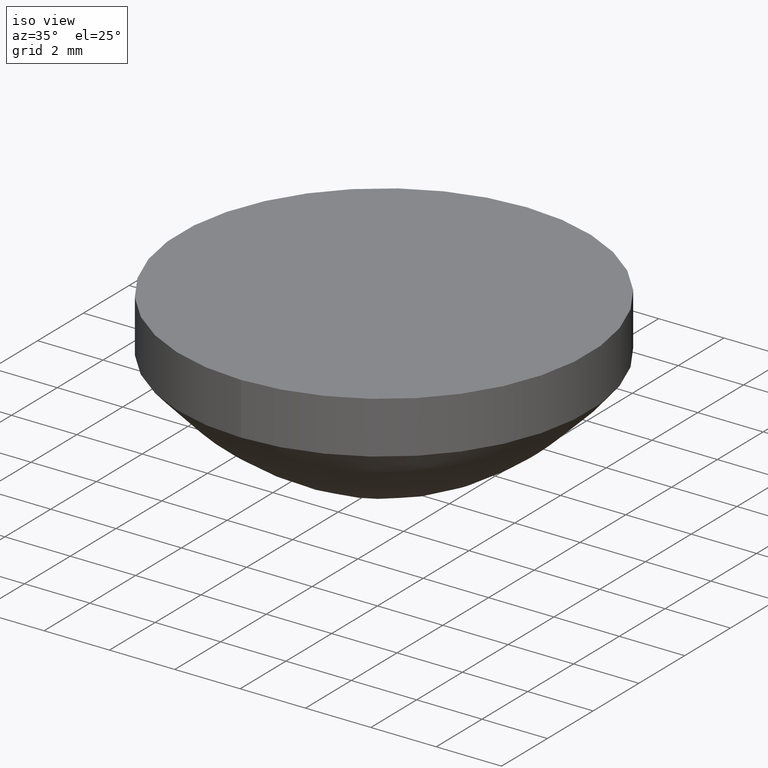
[diagram: clean part render]
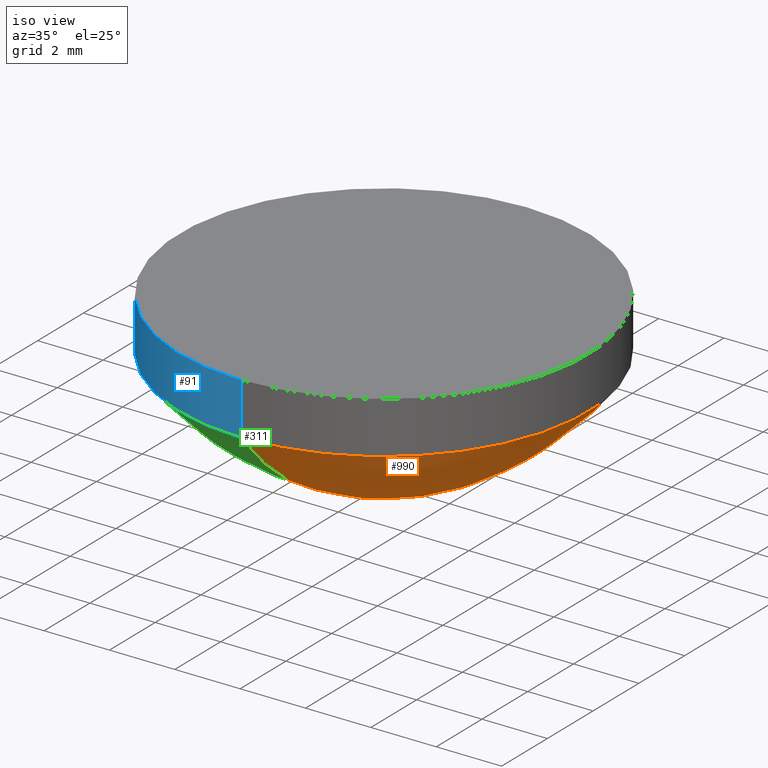
[diagram: same view with three faces highlighted in distinct colors, each labeled with its STEP entity id]
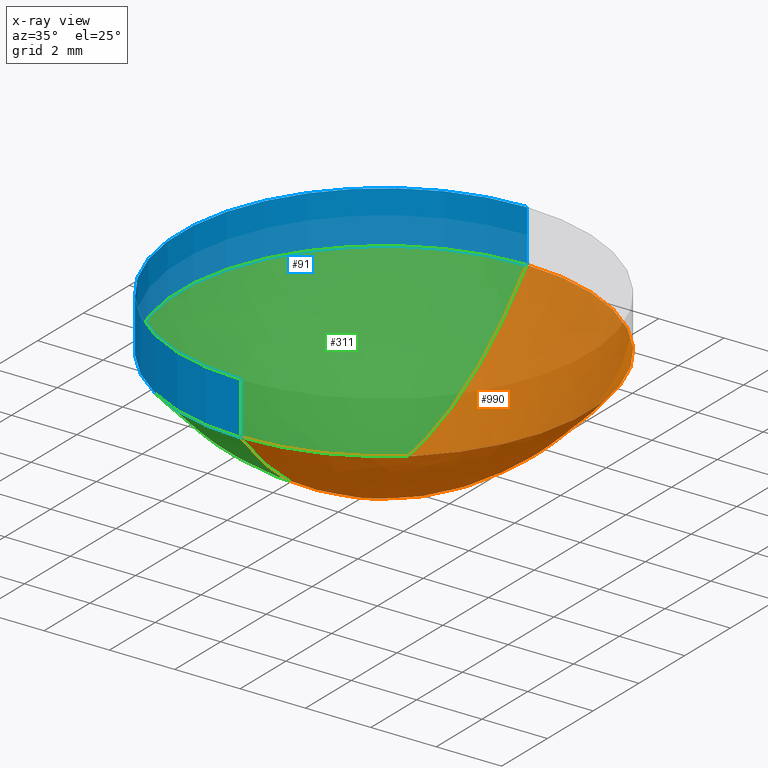
[diagram: x-ray of the same camera — body ghosted, the three highlighted faces saturated]
A machine part, iso view with three faces highlighted in distinct colors.
The next image is the same camera in x-ray (body ghosted, the three faces saturated) — at least one of them is partly hidden behind the body in this view.
Their STEP definitions:

[orange] entity #990 — the highlighted face is a freeform B-spline surface patch.
#8 = CARTESIAN_POINT ( 'NONE',  ( 4.036458333333339255, 2.018229166666669183, 0.3218751355130299863 ) ) ;
#13 = CARTESIAN_POINT ( 'NONE',  ( 5.208333333333340143, 2.604166666666668739, 0.5401275597489779701 ) ) ;
#18 = CARTESIAN_POINT ( 'NONE',  ( 1.530808498934191521E-15, 6.250000000000000000, 3.403336593621870243 ) ) ;
#20 = CARTESIAN_POINT ( 'NONE',  ( 4.427083333333339255, 2.213541666666668295, 0.3881345472726939749 ) ) ;
#23 = VERTEX_POINT ( 'NONE', #715 ) ;
#25 = CARTESIAN_POINT ( 'NONE',  ( -3.986480465974453286E-17, -0.3255208333333330373, 0.007960123591041510377 ) ) ;
#26 = CARTESIAN_POINT ( 'NONE',  ( 1.754051405028760358E-16, 0.7161458333333329263, 0.03984512652848549996 ) ) ;
#30 = CARTESIAN_POINT ( 'NONE',  ( -3.508102810057518251E-16, -2.864583333333329929, 0.6561958816574779974 ) ) ;
#31 = CARTESIAN_POINT ( 'NONE',  ( 2.551347498223661246E-16, 1.041666666666670071, 0.08480386022145479374 ) ) ;
#33 = CARTESIAN_POINT ( 'NONE',  ( -7.574312885351464633E-16, -6.184895833333330373, 3.325070444514509838 ) ) ;
#35 = CARTESIAN_POINT ( 'NONE',  ( -4.145939684613439356E-16, -3.385416666666669627, 0.9249476149875819342 ) ) ;
#36 = CARTESIAN_POINT ( 'NONE',  ( -1.833781014348245936E-16, -1.497395833333329929, 0.1761462725825910236 ) ) ;
#38 = CARTESIAN_POINT ( 'NONE',  ( 12.36979166666665897, 6.184895833333328596, 3.325070444514509393 ) ) ;
#39 = CARTESIAN_POINT ( 'NONE',  ( -4.704046949849854668E-16, -3.841145833333329929, 1.201789558080559761 ) ) ;
#40 = CARTESIAN_POINT ( 'NONE',  ( 1.594592186389783780E-16, 0.6510416666666670737, 0.03286486870605719729 ) ) ;
#42 = CARTESIAN_POINT ( 'NONE',  ( 0.000000000000000000, 6.250000000000000000, 3.403336593621870243 ) ) ;
#44 = CARTESIAN_POINT ( 'NONE',  ( 0.000000000000000000, 2.213541666666669627, 0.3881345472726939749 ) ) ;
#45 = CARTESIAN_POINT ( 'NONE',  ( 1.036484921153358163E-15, 4.231770833333330373, 1.471611584718580001 ) ) ;
#52 = CARTESIAN_POINT ( 'NONE',  ( -6.856746401476061403E-16, -5.598958333333329485, 2.674327517648130037 ) ) ;
#53 = CARTESIAN_POINT ( 'NONE',  ( 7.972960931948905833E-16, 3.255208333333329929, 0.8530870550945359732 ) ) ;
#58 = CARTESIAN_POINT ( 'NONE',  ( -7.095935229434529475E-16, -5.794270833333330373, 2.881664522960900143 ) ) ;
#59 = CARTESIAN_POINT ( 'NONE',  ( 6.380208333333338366, 3.190104166666667851, 0.8183418036056759881 ) ) ;
#63 = CARTESIAN_POINT ( 'NONE',  ( 0.000000000000000000, 2.864583333333329929, 0.6561958816574779974 ) ) ;
#66 = CARTESIAN_POINT ( 'NONE',  ( 0.000000000000000000, 6.250000000000000000, 3.403336593621870243 ) ) ;
#67 = CARTESIAN_POINT ( 'NONE',  ( 10.02604166666665897, -5.013020833333331261, 2.107278639910089790 ) ) ;
#70 = CARTESIAN_POINT ( 'NONE',  ( -2.232429060945700200E-16, -1.822916666666670071, 0.2619909968460720218 ) ) ;
#74 = CARTESIAN_POINT ( 'NONE',  ( -7.095935229434529475E-16, -5.794270833333330373, 2.881664522960900143 ) ) ;
#79 = CARTESIAN_POINT ( 'NONE',  ( 5.729166666666658969, -2.864583333333330817, 0.6561958816574779974 ) ) ;
#82 = CARTESIAN_POINT ( 'NONE',  ( -5.899991089642192072E-16, -4.817708333333330373, 1.935875560595740064 ) ) ;
#85 = CARTESIAN_POINT ( 'NONE',  ( 0.2604166666666659635, -0.1302083333333330373, 0.0009947067892723709167 ) ) ;
#90 = CARTESIAN_POINT ( 'NONE',  ( 0.5208333333333340365, 0.2604166666666669072, 0.004974768714207229887 ) ) ;
#98 = CARTESIAN_POINT ( 'NONE',  ( 5.598958333333339255, 2.799479166666668295, 0.6260573436883378751 ) ) ;
#101 = CARTESIAN_POINT ( 'NONE',  ( 4.557291666666658969, -2.278645833333330373, 0.4116498962344989909 ) ) ;
#103 = ORIENTED_EDGE ( 'NONE', *, *, #890, .T. ) ;
#105 = CARTESIAN_POINT ( 'NONE',  ( -4.943235777808322740E-16, -4.036458333333330373, 1.332854358668239980 ) ) ;
#106 = CARTESIAN_POINT ( 'NONE',  ( 5.581072652364232012E-16, 2.278645833333329929, 0.4116498962344989909 ) ) ;
#111 = CARTESIAN_POINT ( 'NONE',  ( -3.667562028696504690E-16, -2.994791666666670071, 0.7187551310801649773 ) ) ;
#112 = CARTESIAN_POINT ( 'NONE',  ( 3.189184372779557206E-16, 1.302083333333329929, 0.1329122646768700067 ) ) ;
#114 = CARTESIAN_POINT ( 'NONE',  ( 1.041666666666665853, -0.5208333333333330373, 0.02090489973812539870 ) ) ;
#116 = CARTESIAN_POINT ( 'NONE',  ( -2.471617888904167287E-16, -2.018229166666670071, 0.3218751355130299863 ) ) ;
#117 = CARTESIAN_POINT ( 'NONE',  ( -5.102694996447308687E-16, -4.166666666666670515, 1.424498019448530162 ) ) ;
#118 = CARTESIAN_POINT ( 'NONE',  ( 2.083333333333340143, 1.041666666666669627, 0.08480386022145479374 ) ) ;
#122 = CARTESIAN_POINT ( 'NONE',  ( -3.029725154140583585E-16, -2.473958333333330373, 0.4865430395386879936 ) ) ;
#123 = CARTESIAN_POINT ( 'NONE',  ( 9.886471555616645481E-16, 4.036458333333330373, 1.332854358668239980 ) ) ;
#124 = CARTESIAN_POINT ( 'NONE',  ( 2.083333333333339699, -1.041666666666670293, 0.08480386022145479374 ) ) ;
#125 = AXIS2_PLACEMENT_3D ( 'NONE', #794, #388, #722 ) ;
#129 = CARTESIAN_POINT ( 'NONE',  ( -5.581072652364243845E-16, -4.557291666666669627, 1.720464601404820160 ) ) ;
#130 = CARTESIAN_POINT ( 'NONE',  ( 9.114583333333339255, 4.557291666666666963, 1.720464601404820160 ) ) ;
#132 = CARTESIAN_POINT ( 'NONE',  ( 0.000000000000000000, 6.184895833333330373, 3.325070444514509838 ) ) ;
#135 = CARTESIAN_POINT ( 'NONE',  ( -5.341883824405776759E-16, -4.361979166666670515, 1.568483035519639968 ) ) ;
#136 = CARTESIAN_POINT ( 'NONE',  ( -4.863506168488841600E-16, -3.971354166666670071, 1.288324257827230035 ) ) ;
#142 = CARTESIAN_POINT ( 'NONE',  ( -6.537827964198114162E-16, -5.338541666666670515, 2.412316531365890082 ) ) ;
#143 = CARTESIAN_POINT ( 'NONE',  ( 7.682291666666658969, 3.841145833333328152, 1.201789558080559761 ) ) ;
#146 = CARTESIAN_POINT ( 'NONE',  ( 0.000000000000000000, 4.036458333333330373, 1.332854358668239980 ) ) ;
#149 = CARTESIAN_POINT ( 'NONE',  ( 0.000000000000000000, 1.822916666666670071, 0.2619909968460720218 ) ) ;
#150 = CARTESIAN_POINT ( 'NONE',  ( 10.41666666666666075, 5.208333333333327708, 2.287347182296629811 ) ) ;
#153 = CARTESIAN_POINT ( 'NONE',  ( -2.471617888904167287E-16, -2.018229166666670071, 0.3218751355130299863 ) ) ;
#155 = CARTESIAN_POINT ( 'NONE',  ( -6.139179917600660144E-16, -5.013020833333330373, 2.107278639910089790 ) ) ;
#157 = CARTESIAN_POINT ( 'NONE',  ( 3.255208333333338810, -1.627604166666670515, 0.2084057552931189716 ) ) ;
#160 = CARTESIAN_POINT ( 'NONE',  ( 9.895833333333339255, -4.947916666666670515, 2.049196939841769538 ) ) ;
#164 = CIRCLE ( 'NONE', #125, 6.250000000000000000 ) ;
#167 = CARTESIAN_POINT ( 'NONE',  ( 10.41666666666665897, -5.208333333333331261, 2.287347182296629811 ) ) ;
#178 = CARTESIAN_POINT ( 'NONE',  ( 6.059450308281167171E-16, 2.473958333333330373, 0.4865430395386879936 ) ) ;
#183 = CARTESIAN_POINT ( 'NONE',  ( 3.986480465974465242E-16, 1.627604166666670071, 0.2084057552931189994 ) ) ;
#188 = CARTESIAN_POINT ( 'NONE',  ( -2.949995544821101952E-16, -2.408854166666669627, 0.4608541434051309782 ) ) ;
#189 = CARTESIAN_POINT ( 'NONE',  ( 5.338541666666660745, 2.669270833333329040, 0.5680231818765699714 ) ) ;
#193 = CARTESIAN_POINT ( 'NONE',  ( -8.770257025143801790E-17, -0.7161458333333329263, 0.03984512652848549996 ) ) ;
#194 = CARTESIAN_POINT ( 'NONE',  ( 3.508102810057530577E-16, 1.432291666666670071, 0.1610513849395850128 ) ) ;
#197 = CARTESIAN_POINT ( 'NONE',  ( 11.84895833333333748, 5.924479166666667851, 3.025165044322720487 ) ) ;
#198 = CARTESIAN_POINT ( 'NONE',  ( -5.581072652364243106E-17, -0.4557291666666670182, 0.01592518936081670222 ) ) ;
#201 = CARTESIAN_POINT ( 'NONE',  ( -1.275673749111830623E-16, -1.041666666666670071, 0.08480386022145479374 ) ) ;
#202 = CARTESIAN_POINT ( 'NONE',  ( -4.225669293932920496E-16, -3.450520833333330373, 0.9620629232812268894 ) ) ;
#203 = CARTESIAN_POINT ( 'NONE',  ( 2.864583333333339699, -1.432291666666670515, 0.1610513849395850128 ) ) ;
#206 = CARTESIAN_POINT ( 'NONE',  ( -3.189184372779570394E-17, -0.2604166666666670182, 0.004974768714207229887 ) ) ;
#207 = CARTESIAN_POINT ( 'NONE',  ( 6.901041666666658081, -3.450520833333331261, 0.9620629232812268894 ) ) ;
#208 = CARTESIAN_POINT ( 'NONE',  ( 2.473958333333340143, 1.236979166666669405, 0.1198680337278859864 ) ) ;
#213 = CARTESIAN_POINT ( 'NONE',  ( -5.660802261683724985E-16, -4.622395833333329485, 1.772930391347679935 ) ) ;
#214 = CARTESIAN_POINT ( 'NONE',  ( 7.161458333333340143, 3.580729166666668739, 1.038712272262510172 ) ) ;
#217 = CARTESIAN_POINT ( 'NONE',  ( 0.000000000000000000, 4.427083333333329485, 1.618240928610130025 ) ) ;
#220 = CARTESIAN_POINT ( 'NONE',  ( 0.000000000000000000, 2.018229166666670071, 0.3218751355130299863 ) ) ;
#222 = CARTESIAN_POINT ( 'NONE',  ( -4.385128512571906935E-16, -3.580729166666670071, 1.038712272262510172 ) ) ;
#224 = CARTESIAN_POINT ( 'NONE',  ( 0.000000000000000000, 4.947916666666669627, 2.049196939841769538 ) ) ;
#227 = CARTESIAN_POINT ( 'NONE',  ( -6.139179917600660144E-16, -5.013020833333330373, 2.107278639910089790 ) ) ;
#228 = CARTESIAN_POINT ( 'NONE',  ( -5.421613433725257899E-16, -4.427083333333329485, 1.618240928610130025 ) ) ;
#231 = CARTESIAN_POINT ( 'NONE',  ( 0.000000000000000000, 5.533854166666669627, 2.607297952016180087 ) ) ;
#233 = CARTESIAN_POINT ( 'NONE',  ( 0.000000000000000000, 0.8463541666666670737, 0.05581488638602400548 ) ) ;
#234 = CARTESIAN_POINT ( 'NONE',  ( 10.80729166666665897, 5.403645833333326820, 2.476292475211630428 ) ) ;
#237 = EDGE_CURVE ( 'NONE', #269, #765, #164, .T. ) ;
#238 = CARTESIAN_POINT ( 'NONE',  ( 0.000000000000000000, 2.408854166666669627, 0.4608541434051309782 ) ) ;
#240 = CARTESIAN_POINT ( 'NONE',  ( 1.403241124023009470E-15, 5.729166666666669627, 2.811510783374440159 ) ) ;
#243 = CARTESIAN_POINT ( 'NONE',  ( -1.993240232987232621E-16, -1.627604166666670071, 0.2084057552931189994 ) ) ;
#244 = CARTESIAN_POINT ( 'NONE',  ( 1.259727827247929218E-15, 5.143229166666670515, 2.226353750338610382 ) ) ;
#248 = CARTESIAN_POINT ( 'NONE',  ( 1.307565592839622832E-15, 5.338541666666670515, 2.412316531365890082 ) ) ;
#261 = CARTESIAN_POINT ( 'NONE',  ( 3.385416666666658525, -1.692708333333330373, 0.2255703485160569788 ) ) ;
#266 = CARTESIAN_POINT ( 'NONE',  ( 3.255208333333339699, 1.627604166666669183, 0.2084057552931189716 ) ) ;
#269 = VERTEX_POINT ( 'NONE', #644 ) ;
#271 = CARTESIAN_POINT ( 'NONE',  ( 4.817708333333339255, -2.408854166666670071, 0.4608541434051309782 ) ) ;
#274 = CARTESIAN_POINT ( 'NONE',  ( 11.97916666666666075, 5.989583333333327708, 3.098511873417590046 ) ) ;
#275 = CARTESIAN_POINT ( 'NONE',  ( 5.102694996447296854E-16, 2.083333333333330373, 0.3432471658558169936 ) ) ;
#278 = CARTESIAN_POINT ( 'NONE',  ( -7.494583276031983493E-16, -6.119791666666670515, 3.248464545390089775 ) ) ;
#280 = CARTESIAN_POINT ( 'NONE',  ( 1.302083333333334147, 0.6510416666666667407, 0.03286486870605719729 ) ) ;
#282 = CARTESIAN_POINT ( 'NONE',  ( -7.972960931948918898E-17, -0.6510416666666670737, 0.03286486870605719729 ) ) ;
#283 = CARTESIAN_POINT ( 'NONE',  ( 8.463541666666658969, -4.231770833333331261, 1.471611584718580001 ) ) ;
#284 = CARTESIAN_POINT ( 'NONE',  ( 1.275673749111825446E-16, 0.5208333333333330373, 0.02090489973812539870 ) ) ;
#286 = CARTESIAN_POINT ( 'NONE',  ( -1.993240232987232621E-16, -1.627604166666670071, 0.2084057552931189994 ) ) ;
#287 = CARTESIAN_POINT ( 'NONE',  ( 1.084322686745051580E-15, 4.427083333333329485, 1.618240928610130025 ) ) ;
#288 = CARTESIAN_POINT ( 'NONE',  ( 1.432291666666665853, 0.7161458333333325932, 0.03984512652848549996 ) ) ;
#290 = CARTESIAN_POINT ( 'NONE',  ( -6.378368745559128216E-16, -5.208333333333330373, 2.287347182296629811 ) ) ;
#291 = CARTESIAN_POINT ( 'NONE',  ( 6.770833333333338366, 3.385416666666667851, 0.9249476149875819342 ) ) ;
#293 = CARTESIAN_POINT ( 'NONE',  ( 0.000000000000000000, 4.166666666666670515, 1.424498019448530162 ) ) ;
#296 = CARTESIAN_POINT ( 'NONE',  ( 0.000000000000000000, 1.692708333333329929, 0.2255703485160570065 ) ) ;
#297 = CARTESIAN_POINT ( 'NONE',  ( 9.244791666666658969, -4.622395833333331261, 1.772930391347679935 ) ) ;
#299 = CARTESIAN_POINT ( 'NONE',  ( 0.000000000000000000, 4.817708333333330373, 1.935875560595740064 ) ) ;
#303 = CARTESIAN_POINT ( 'NONE',  ( -6.777016792156581248E-16, -5.533854166666669627, 2.607297952016180087 ) ) ;
#304 = CARTESIAN_POINT ( 'NONE',  ( 1.020538999289461737E-15, 4.166666666666670515, 1.424498019448530162 ) ) ;
#306 = CARTESIAN_POINT ( 'NONE',  ( 0.000000000000000000, 5.338541666666670515, 2.412316531365890082 ) ) ;
#308 = CARTESIAN_POINT ( 'NONE',  ( 0.000000000000000000, 2.278645833333329929, 0.4116498962344989909 ) ) ;
#309 = CARTESIAN_POINT ( 'NONE',  ( 11.19791666666666075, 5.598958333333327708, 2.674327517648129593 ) ) ;
#314 = CARTESIAN_POINT ( 'NONE',  ( 0.000000000000000000, 5.403645833333329485, 2.476292475211629984 ) ) ;
#316 = CARTESIAN_POINT ( 'NONE',  ( -6.856746401476061403E-16, -5.598958333333329485, 2.674327517648130037 ) ) ;
#320 = CARTESIAN_POINT ( 'NONE',  ( -2.312158670265180848E-16, -1.888020833333329929, 0.2812470499699329940 ) ) ;
#321 = CARTESIAN_POINT ( 'NONE',  ( 1.275673749111825643E-15, 5.208333333333330373, 2.287347182296629811 ) ) ;
#323 = CARTESIAN_POINT ( 'NONE',  ( 7.335124057393009380E-16, 2.994791666666670071, 0.7187551310801649773 ) ) ;
#324 = CARTESIAN_POINT ( 'NONE',  ( 0.5208333333333339255, -0.2604166666666670737, 0.004974768714207229887 ) ) ;
#326 = CARTESIAN_POINT ( 'NONE',  ( 1.211890061656235604E-15, 4.947916666666669627, 2.049196939841769538 ) ) ;
#333 = CARTESIAN_POINT ( 'NONE',  ( 0.1302083333333333426, -0.06510416666666669905, 0.000000000000000000 ) ) ;
#340 = CARTESIAN_POINT ( 'NONE',  ( -2.949995544821101952E-16, -2.408854166666669627, 0.4608541434051309782 ) ) ;
#347 = CARTESIAN_POINT ( 'NONE',  ( 6.856746401476073235E-16, 2.799479166666669627, 0.6260573436883379861 ) ) ;
#353 = CARTESIAN_POINT ( 'NONE',  ( -5.581072652364243106E-17, -0.4557291666666670182, 0.01592518936081670222 ) ) ;
#354 = CARTESIAN_POINT ( 'NONE',  ( -3.508102810057518251E-16, -2.864583333333329929, 0.6561958816574779974 ) ) ;
#359 = CARTESIAN_POINT ( 'NONE',  ( 12.23958333333333925, 6.119791666666668739, 3.248464545390089775 ) ) ;
#360 = CARTESIAN_POINT ( 'NONE',  ( -1.514862577070297956E-16, -1.236979166666670071, 0.1198680337278860003 ) ) ;
#362 = CARTESIAN_POINT ( 'NONE',  ( -2.072969842306713515E-16, -1.692708333333329929, 0.2255703485160570065 ) ) ;
#363 = CARTESIAN_POINT ( 'NONE',  ( -1.036484921153359223E-16, -0.8463541666666670737, 0.05581488638602400548 ) ) ;
#364 = CARTESIAN_POINT ( 'NONE',  ( 1.498916655206396699E-15, 6.119791666666670515, 3.248464545390089775 ) ) ;
#365 = CARTESIAN_POINT ( 'NONE',  ( 7.682291666666658081, -3.841145833333330817, 1.201789558080559761 ) ) ;
#366 = CARTESIAN_POINT ( 'NONE',  ( 2.604166666666659857, 1.302083333333329263, 0.1329122646768700067 ) ) ;
#368 = CARTESIAN_POINT ( 'NONE',  ( 12.49999999999999822, -6.250000000000002665, 3.403336593621869799 ) ) ;
#369 = CARTESIAN_POINT ( 'NONE',  ( 7.291666666666658969, -3.645833333333331261, 1.078246313772860177 ) ) ;
#370 = CARTESIAN_POINT ( 'NONE',  ( 3.667562028696491871E-16, 1.497395833333329929, 0.1761462725825910236 ) ) ;
#373 = CARTESIAN_POINT ( 'NONE',  ( 0.000000000000000000, 5.598958333333329485, 2.674327517648130037 ) ) ;
#375 = CARTESIAN_POINT ( 'NONE',  ( 0.000000000000000000, 0.6510416666666670737, 0.03286486870605719729 ) ) ;
#376 = CARTESIAN_POINT ( 'NONE',  ( -4.943235777808322740E-16, -4.036458333333330373, 1.332854358668239980 ) ) ;
#382 = CARTESIAN_POINT ( 'NONE',  ( 0.000000000000000000, 1.106770833333329929, 0.09581383076524060960 ) ) ;
#383 = CARTESIAN_POINT ( 'NONE',  ( 1.116214530472848769E-15, 4.557291666666669627, 1.720464601404820160 ) ) ;
#386 = CARTESIAN_POINT ( 'NONE',  ( 0.000000000000000000, 3.450520833333330373, 0.9620629232812268894 ) ) ;
#388 = DIRECTION ( 'NONE',  ( 0.000000000000000000, 0.000000000000000000, 1.000000000000000000 ) ) ;
#390 = CARTESIAN_POINT ( 'NONE',  ( 0.000000000000000000, 1.497395833333329929, 0.1761462725825910236 ) ) ;
#391 = CARTESIAN_POINT ( 'NONE',  ( 7.291666666666659857, 3.645833333333328596, 1.078246313772860177 ) ) ;
#395 = CARTESIAN_POINT ( 'NONE',  ( 0.000000000000000000, 2.799479166666669627, 0.6260573436883379861 ) ) ;
#396 = CARTESIAN_POINT ( 'NONE',  ( 10.02604166666666075, 5.013020833333327708, 2.107278639910089790 ) ) ;
#398 = CARTESIAN_POINT ( 'NONE',  ( -1.594592186389779034E-17, -0.1302083333333330095, 0.0009947067892723709167 ) ) ;
#400 = CARTESIAN_POINT ( 'NONE',  ( 4.947916666666658969, -2.473958333333330817, 0.4865430395386879936 ) ) ;
#403 = CARTESIAN_POINT ( 'NONE',  ( 9.635416666666657193, -4.817708333333331261, 1.935875560595740064 ) ) ;
#405 = CARTESIAN_POINT ( 'NONE',  ( 5.729166666666659857, 2.864583333333329040, 0.6561958816574779974 ) ) ;
#407 = CARTESIAN_POINT ( 'NONE',  ( 9.505208333333339255, 4.752604166666666963, 1.880635864230930210 ) ) ;
#411 = CARTESIAN_POINT ( 'NONE',  ( 0.1302083333333333703, 0.06510416666666665741, 0.000000000000000000 ) ) ;
#416 = CARTESIAN_POINT ( 'NONE',  ( 0.2604166666666660190, 0.1302083333333329540, 0.0009947067892723709167 ) ) ;
#424 = B_SPLINE_CURVE_WITH_KNOTS ( 'NONE', 3,
 ( #42, #132, #467, #713, #806, #708, #546, #373, #231, #314, #306, #557, #1047, #891, #224, #299, #627, #1042, #964, #217, #455, #898, #293, #146, #552, #642, #884, #650, #565, #386, #787, #720, #958, #1054, #474, #63, #395, #728, #1062, #980, #238, #308, #44, #789, #220, #808, #149, #296, #630, #390, #874, #1044, #645, #382, #723, #976, #233, #803, #375, #717, #549, #796, #554, #1058, #893, #887 ),
 .UNSPECIFIED., .F., .F.,
 ( 4, 2, 2, 2, 2, 2, 2, 2, 2, 2, 2, 2, 2, 2, 2, 2, 2, 2, 2, 2, 2, 2, 2, 2, 2, 2, 2, 2, 2, 2, 2, 2, 4 ),
 ( -1.000000000000000000, -0.9687500000000000000, -0.9375000000000000000, -0.9062500000000000000, -0.8750000000000000000, -0.8437500000000000000, -0.8125000000000000000, -0.7812500000000000000, -0.7500000000000000000, -0.7187500000000000000, -0.6875000000000000000, -0.6562500000000000000, -0.6250000000000000000, -0.5937500000000000000, -0.5625000000000000000, -0.5312500000000000000, -0.5000000000000000000, -0.4687500000000000000, -0.4375000000000000000, -0.4062500000000000000, -0.3750000000000000000, -0.3437500000000000000, -0.3125000000000000000, -0.2812500000000000000, -0.2500000000000000000, -0.2187500000000000000, -0.1875000000000000000, -0.1562500000000000000, -0.1250000000000000000, -0.09375000000000000000, -0.06250000000000000000, -0.03125000000000000000, 0.000000000000000000 ),
 .UNSPECIFIED. ) ;
#426 = CARTESIAN_POINT ( 'NONE',  ( 6.537827964198102329E-16, 2.669270833333330373, 0.5680231818765699714 ) ) ;
#430 = CARTESIAN_POINT ( 'NONE',  ( 7.494583276031971660E-16, 3.059895833333330373, 0.7511758411882110131 ) ) ;
#434 = CARTESIAN_POINT ( 'NONE',  ( -2.710806716862634373E-16, -2.213541666666669627, 0.3881345472726939749 ) ) ;
#435 = CARTESIAN_POINT ( 'NONE',  ( -2.551347498223648427E-16, -2.083333333333330373, 0.3432471658558169936 ) ) ;
#438 = CARTESIAN_POINT ( 'NONE',  ( -1.754051405028765288E-16, -1.432291666666670071, 0.1610513849395850128 ) ) ;
#439 = CARTESIAN_POINT ( 'NONE',  ( 2.232429060945694777E-16, 0.9114583333333330373, 0.06480438740725780189 ) ) ;
#442 = CARTESIAN_POINT ( 'NONE',  ( -4.863506168488841600E-16, -3.971354166666670071, 1.288324257827230035 ) ) ;
#443 = CARTESIAN_POINT ( 'NONE',  ( -1.754051405028765288E-16, -1.432291666666670071, 0.1610513849395850128 ) ) ;
#445 = CARTESIAN_POINT ( 'NONE',  ( -1.594592186389779034E-17, -0.1302083333333330095, 0.0009947067892723709167 ) ) ;
#446 = CARTESIAN_POINT ( 'NONE',  ( 7.942708333333338366, -3.971354166666671404, 1.288324257827230035 ) ) ;
#447 = CARTESIAN_POINT ( 'NONE',  ( -1.355403358431311023E-16, -1.106770833333329929, 0.09581383076524060960 ) ) ;
#451 = CARTESIAN_POINT ( 'NONE',  ( -2.790536326182116006E-16, -2.278645833333329929, 0.4116498962344989909 ) ) ;
#452 = CARTESIAN_POINT ( 'NONE',  ( 8.854166666666660745, 4.427083333333327708, 1.618240928610129803 ) ) ;
#453 = CARTESIAN_POINT ( 'NONE',  ( 2.072969842306718445E-16, 0.8463541666666670737, 0.05581488638602400548 ) ) ;
#455 = CARTESIAN_POINT ( 'NONE',  ( 0.000000000000000000, 4.361979166666670515, 1.568483035519639968 ) ) ;
#456 = CARTESIAN_POINT ( 'NONE',  ( -5.421613433725257899E-16, -4.427083333333329485, 1.618240928610130025 ) ) ;
#457 = CARTESIAN_POINT ( 'NONE',  ( 8.723958333333339255, -4.361979166666671404, 1.568483035519640190 ) ) ;
#463 = CARTESIAN_POINT ( 'NONE',  ( -5.102694996447308687E-16, -4.166666666666670515, 1.424498019448530162 ) ) ;
#464 = CARTESIAN_POINT ( 'NONE',  ( 7.552083333333336590, -3.776041666666670515, 1.159784955675789764 ) ) ;
#467 = CARTESIAN_POINT ( 'NONE',  ( 0.000000000000000000, 6.119791666666670515, 3.248464545390089775 ) ) ;
#471 = CARTESIAN_POINT ( 'NONE',  ( 7.654042494670957606E-16, -6.250000000000000000, 3.403336593621870243 ) ) ;
#472 = CARTESIAN_POINT ( 'NONE',  ( 6.380208333333337478, -3.190104166666670515, 0.8183418036056759881 ) ) ;
#474 = CARTESIAN_POINT ( 'NONE',  ( 0.000000000000000000, 2.994791666666670071, 0.7187551310801649773 ) ) ;
#477 = CARTESIAN_POINT ( 'NONE',  ( -7.335124057392997547E-16, -5.989583333333330373, 3.098511873417590046 ) ) ;
#478 = CARTESIAN_POINT ( 'NONE',  ( -6.298639136239646090E-16, -5.143229166666670515, 2.226353750338610382 ) ) ;
#482 = CARTESIAN_POINT ( 'NONE',  ( 4.817708333333339255, 2.408854166666668295, 0.4608541434051309782 ) ) ;
#484 = CARTESIAN_POINT ( 'NONE',  ( 1.419187045886905895E-15, 5.794270833333330373, 2.881664522960900143 ) ) ;
#487 = CARTESIAN_POINT ( 'NONE',  ( 6.119791666666658969, -3.059895833333331705, 0.7511758411882111242 ) ) ;
#490 = CARTESIAN_POINT ( 'NONE',  ( 1.179998217928438414E-15, 4.817708333333330373, 1.935875560595740064 ) ) ;
#494 = CARTESIAN_POINT ( 'NONE',  ( 0.000000000000000000, 0.000000000000000000, 0.000000000000000000 ) ) ;
#496 = CARTESIAN_POINT ( 'NONE',  ( -6.617557573517594316E-16, -5.403645833333329485, 2.476292475211629984 ) ) ;
#507 = CARTESIAN_POINT ( 'NONE',  ( 5.208333333333339255, -2.604166666666670515, 0.5401275597489779701 ) ) ;
#511 = CARTESIAN_POINT ( 'NONE',  ( 4.947916666666659857, 2.473958333333328596, 0.4865430395386879936 ) ) ;
#515 = CARTESIAN_POINT ( 'NONE',  ( 11.97916666666665719, -5.989583333333333037, 3.098511873417590046 ) ) ;
#516 = CARTESIAN_POINT ( 'NONE',  ( -3.747291638015985830E-16, -3.059895833333330373, 0.7511758411882110131 ) ) ;
#521 = CARTESIAN_POINT ( 'NONE',  ( 1.467024811478599509E-15, 5.989583333333330373, 3.098511873417590046 ) ) ;
#522 = CARTESIAN_POINT ( 'NONE',  ( 2.604166666666659857, -1.302083333333330373, 0.1329122646768700067 ) ) ;
#526 = CARTESIAN_POINT ( 'NONE',  ( -3.268913982099051165E-16, -2.669270833333330373, 0.5680231818765699714 ) ) ;
#527 = CARTESIAN_POINT ( 'NONE',  ( -8.770257025143801790E-17, -0.7161458333333329263, 0.03984512652848549996 ) ) ;
#529 = CARTESIAN_POINT ( 'NONE',  ( -1.116214530472847389E-16, -0.9114583333333330373, 0.06480438740725780189 ) ) ;
#531 = CARTESIAN_POINT ( 'NONE',  ( 8.854166666666657193, -4.427083333333330373, 1.618240928610129803 ) ) ;
#532 = CARTESIAN_POINT ( 'NONE',  ( 3.029725154140595911E-16, 1.236979166666670071, 0.1198680337278860003 ) ) ;
#536 = CARTESIAN_POINT ( 'NONE',  ( -4.464858121891388568E-16, -3.645833333333330373, 1.078246313772859954 ) ) ;
#537 = CARTESIAN_POINT ( 'NONE',  ( 6.770833333333337478, -3.385416666666670515, 0.9249476149875819342 ) ) ;
#538 = CARTESIAN_POINT ( 'NONE',  ( -7.972960931948918898E-17, -0.6510416666666670737, 0.03286486870605719729 ) ) ;
#543 = CARTESIAN_POINT ( 'NONE',  ( -7.016205620115047349E-16, -5.729166666666669627, 2.811510783374440159 ) ) ;
#544 = CARTESIAN_POINT ( 'NONE',  ( 6.901041666666659857, 3.450520833333328596, 0.9620629232812268894 ) ) ;
#546 = CARTESIAN_POINT ( 'NONE',  ( 0.000000000000000000, 5.729166666666669627, 2.811510783374440159 ) ) ;
#549 = CARTESIAN_POINT ( 'NONE',  ( 0.000000000000000000, 0.4557291666666670182, 0.01592518936081670222 ) ) ;
#550 = CARTESIAN_POINT ( 'NONE',  ( 8.291879369226878711E-16, 3.385416666666669627, 0.9249476149875819342 ) ) ;
#552 = CARTESIAN_POINT ( 'NONE',  ( 0.000000000000000000, 3.971354166666670071, 1.288324257827230035 ) ) ;
#554 = CARTESIAN_POINT ( 'NONE',  ( 0.000000000000000000, 0.2604166666666670182, 0.004974768714207229887 ) ) ;
#555 = CARTESIAN_POINT ( 'NONE',  ( 9.248634681060749028E-16, 3.776041666666669627, 1.159784955675789986 ) ) ;
#557 = CARTESIAN_POINT ( 'NONE',  ( 0.000000000000000000, 5.208333333333330373, 2.287347182296629811 ) ) ;
#561 = CARTESIAN_POINT ( 'NONE',  ( -7.494583276031983493E-16, -6.119791666666670515, 3.248464545390089775 ) ) ;
#562 = CARTESIAN_POINT ( 'NONE',  ( -6.537827964198114162E-16, -5.338541666666670515, 2.412316531365890082 ) ) ;
#565 = CARTESIAN_POINT ( 'NONE',  ( 0.000000000000000000, 3.580729166666670071, 1.038712272262510172 ) ) ;
#566 = CARTESIAN_POINT ( 'NONE',  ( 10.67708333333333925, -5.338541666666672292, 2.412316531365890082 ) ) ;
#569 = CARTESIAN_POINT ( 'NONE',  ( 5.989583333333338366, -2.994791666666670515, 0.7187551310801649773 ) ) ;
#570 = CARTESIAN_POINT ( 'NONE',  ( 6.378368745559140789E-17, 0.2604166666666670182, 0.004974768714207229887 ) ) ;
#572 = CARTESIAN_POINT ( 'NONE',  ( 11.19791666666665897, -5.598958333333332149, 2.674327517648129593 ) ) ;
#577 = CARTESIAN_POINT ( 'NONE',  ( 1.371349280295212281E-15, 5.598958333333329485, 2.674327517648130037 ) ) ;
#585 = CARTESIAN_POINT ( 'NONE',  ( 7.972960931948906572E-17, 0.3255208333333330373, 0.007960123591041510377 ) ) ;
#588 = CARTESIAN_POINT ( 'NONE',  ( 4.036458333333339255, -2.018229166666670071, 0.3218751355130299863 ) ) ;
#595 = CARTESIAN_POINT ( 'NONE',  ( 3.776041666666658969, 1.888020833333329263, 0.2812470499699330495 ) ) ;
#600 = CARTESIAN_POINT ( 'NONE',  ( -3.986480465974452916E-16, -3.255208333333329929, 0.8530870550945359732 ) ) ;
#601 = CARTESIAN_POINT ( 'NONE',  ( 5.598958333333338366, -2.799479166666670515, 0.6260573436883378751 ) ) ;
#605 = CARTESIAN_POINT ( 'NONE',  ( -4.145939684613439356E-16, -3.385416666666669627, 0.9249476149875819342 ) ) ;
#606 = CARTESIAN_POINT ( 'NONE',  ( 2.473958333333339699, -1.236979166666670071, 0.1198680337278859864 ) ) ;
#609 = CARTESIAN_POINT ( 'NONE',  ( -7.255394448073515421E-16, -5.924479166666669627, 3.025165044322720043 ) ) ;
#610 = CARTESIAN_POINT ( 'NONE',  ( 1.302083333333333925, -0.6510416666666671848, 0.03286486870605719729 ) ) ;
#613 = CARTESIAN_POINT ( 'NONE',  ( -2.551347498223648427E-16, -2.083333333333330373, 0.3432471658558169936 ) ) ;
#614 = CARTESIAN_POINT ( 'NONE',  ( 7.813501713309942566E-16, 3.190104166666669627, 0.8183418036056759881 ) ) ;
#615 = CARTESIAN_POINT ( 'NONE',  ( -1.594592186389778603E-16, -1.302083333333329929, 0.1329122646768700067 ) ) ;
#618 = CARTESIAN_POINT ( 'NONE',  ( -2.312158670265180848E-16, -1.888020833333329929, 0.2812470499699329940 ) ) ;
#619 = CARTESIAN_POINT ( 'NONE',  ( 8.072916666666660745, 4.036458333333328596, 1.332854358668239980 ) ) ;
#620 = CARTESIAN_POINT ( 'NONE',  ( 1.116214530472848621E-16, 0.4557291666666670182, 0.01592518936081670222 ) ) ;
#624 = CARTESIAN_POINT ( 'NONE',  ( -6.059450308281178018E-16, -4.947916666666669627, 2.049196939841769538 ) ) ;
#625 = CARTESIAN_POINT ( 'NONE',  ( 8.770257025143813870E-16, 3.580729166666670071, 1.038712272262510172 ) ) ;
#627 = CARTESIAN_POINT ( 'NONE',  ( 0.000000000000000000, 4.752604166666669627, 1.880635864230930210 ) ) ;
#630 = CARTESIAN_POINT ( 'NONE',  ( 0.000000000000000000, 1.627604166666670071, 0.2084057552931189994 ) ) ;
#631 = CARTESIAN_POINT ( 'NONE',  ( 8.333333333333337478, -4.166666666666670515, 1.424498019448530162 ) ) ;
#637 = CARTESIAN_POINT ( 'NONE',  ( -6.617557573517594316E-16, -5.403645833333329485, 2.476292475211629984 ) ) ;
#639 = CARTESIAN_POINT ( 'NONE',  ( -4.624317340530374514E-16, -3.776041666666669627, 1.159784955675789986 ) ) ;
#642 = CARTESIAN_POINT ( 'NONE',  ( 0.000000000000000000, 3.841145833333329929, 1.201789558080559761 ) ) ;
#644 = CARTESIAN_POINT ( 'NONE',  ( 7.654042494670957606E-16, -6.250000000000000000, 3.403336593621870243 ) ) ;
#645 = CARTESIAN_POINT ( 'NONE',  ( 0.000000000000000000, 1.236979166666670071, 0.1198680337278860003 ) ) ;
#646 = CARTESIAN_POINT ( 'NONE',  ( 11.06770833333333925, -5.533854166666671404, 2.607297952016180087 ) ) ;
#650 = CARTESIAN_POINT ( 'NONE',  ( 0.000000000000000000, 3.645833333333330373, 1.078246313772859954 ) ) ;
#651 = CARTESIAN_POINT ( 'NONE',  ( 11.58854166666665897, 5.794270833333326820, 2.881664522960900143 ) ) ;
#655 = CARTESIAN_POINT ( 'NONE',  ( 3.385416666666659413, 1.692708333333329040, 0.2255703485160569788 ) ) ;
#656 = CARTESIAN_POINT ( 'NONE',  ( 10.28645833333333748, -5.143229166666670515, 2.226353750338610382 ) ) ;
#658 = CARTESIAN_POINT ( 'NONE',  ( 0.000000000000000000, 0.000000000000000000, 0.000000000000000000 ) ) ;
#660 = CARTESIAN_POINT ( 'NONE',  ( -6.378368745559128216E-16, -5.208333333333330373, 2.287347182296629811 ) ) ;
#668 = CARTESIAN_POINT ( 'NONE',  ( 0.000000000000000000, 0.000000000000000000, 0.000000000000000000 ) ) ;
#671 = CARTESIAN_POINT ( 'NONE',  ( 3.645833333333338810, -1.822916666666670737, 0.2619909968460720218 ) ) ;
#678 = CARTESIAN_POINT ( 'NONE',  ( 3.645833333333340143, 1.822916666666669405, 0.2619909968460720218 ) ) ;
#684 = CARTESIAN_POINT ( 'NONE',  ( 7.016205620115036502E-16, 2.864583333333329929, 0.6561958816574779974 ) ) ;
#688 = ORIENTED_EDGE ( 'NONE', *, *, #714, .F. ) ;
#690 = CARTESIAN_POINT ( 'NONE',  ( -1.594592186389778603E-16, -1.302083333333329929, 0.1329122646768700067 ) ) ;
#691 = CARTESIAN_POINT ( 'NONE',  ( 4.166666666666660745, 2.083333333333329485, 0.3432471658558170491 ) ) ;
#695 = CARTESIAN_POINT ( 'NONE',  ( 12.50000000000000000, 6.249999999999997335, 3.403336593621869799 ) ) ;
#696 = CARTESIAN_POINT ( 'NONE',  ( 2.994791666666658969, -1.497395833333330595, 0.1761462725825909958 ) ) ;
#698 = CARTESIAN_POINT ( 'NONE',  ( -1.036484921153359223E-16, -0.8463541666666670737, 0.05581488638602400548 ) ) ;
#700 = CARTESIAN_POINT ( 'NONE',  ( 1.692708333333333703, 0.8463541666666665186, 0.05581488638602400548 ) ) ;
#701 = CARTESIAN_POINT ( 'NONE',  ( -4.704046949849854668E-16, -3.841145833333329929, 1.201789558080559761 ) ) ;
#702 = CARTESIAN_POINT ( 'NONE',  ( -4.464858121891388568E-16, -3.645833333333330373, 1.078246313772859954 ) ) ;
#703 = CARTESIAN_POINT ( 'NONE',  ( 1.041666666666666075, 0.5208333333333328152, 0.02090489973812539870 ) ) ;
#705 = CARTESIAN_POINT ( 'NONE',  ( -2.232429060945700200E-16, -1.822916666666670071, 0.2619909968460720218 ) ) ;
#706 = CARTESIAN_POINT ( 'NONE',  ( 8.451338587865840991E-16, 3.450520833333330373, 0.9620629232812268894 ) ) ;
#708 = CARTESIAN_POINT ( 'NONE',  ( 0.000000000000000000, 5.794270833333330373, 2.881664522960900143 ) ) ;
#710 = CARTESIAN_POINT ( 'NONE',  ( -7.574312885351464633E-16, -6.184895833333330373, 3.325070444514509838 ) ) ;
#711 = CARTESIAN_POINT ( 'NONE',  ( 1.132160452336744997E-15, 4.622395833333329485, 1.772930391347679935 ) ) ;
#713 = CARTESIAN_POINT ( 'NONE',  ( 0.000000000000000000, 5.989583333333330373, 3.098511873417590046 ) ) ;
#714 = EDGE_CURVE ( 'NONE', #765, #23, #424, .T. ) ;
#715 = CARTESIAN_POINT ( 'NONE',  ( 0.000000000000000000, 0.000000000000000000, 0.000000000000000000 ) ) ;
#717 = CARTESIAN_POINT ( 'NONE',  ( 0.000000000000000000, 0.5208333333333330373, 0.02090489973812539870 ) ) ;
#718 = CARTESIAN_POINT ( 'NONE',  ( -5.341883824405776759E-16, -4.361979166666670515, 1.568483035519639968 ) ) ;
#720 = CARTESIAN_POINT ( 'NONE',  ( 0.000000000000000000, 3.255208333333329929, 0.8530870550945359732 ) ) ;
#722 = DIRECTION ( 'NONE',  ( 0.000000000000000000, 1.000000000000000000, 0.000000000000000000 ) ) ;
#723 = CARTESIAN_POINT ( 'NONE',  ( 0.000000000000000000, 1.041666666666670071, 0.08480386022145479374 ) ) ;
#724 = CARTESIAN_POINT ( 'NONE',  ( -5.660802261683724985E-16, -4.622395833333329485, 1.772930391347679935 ) ) ;
#728 = CARTESIAN_POINT ( 'NONE',  ( 0.000000000000000000, 2.669270833333330373, 0.5680231818765699714 ) ) ;
#729 = CARTESIAN_POINT ( 'NONE',  ( 9.895833333333339255, 4.947916666666666963, 2.049196939841769538 ) ) ;
#734 = CARTESIAN_POINT ( 'NONE',  ( -2.072969842306713515E-16, -1.692708333333329929, 0.2255703485160570065 ) ) ;
#736 = CARTESIAN_POINT ( 'NONE',  ( 0.6510416666666659635, -0.3255208333333330928, 0.007960123591041508642 ) ) ;
#738 = CARTESIAN_POINT ( 'NONE',  ( 9.635416666666658969, 4.817708333333326820, 1.935875560595740064 ) ) ;
#740 = CARTESIAN_POINT ( 'NONE',  ( 5.421613433725268746E-16, 2.213541666666669627, 0.3881345472726939749 ) ) ;
#742 = CARTESIAN_POINT ( 'NONE',  ( 1.164052296064542186E-15, 4.752604166666669627, 1.880635864230930210 ) ) ;
#750 = CARTESIAN_POINT ( 'NONE',  ( 3.189184372779558068E-17, 0.1302083333333330095, 0.0009947067892723709167 ) ) ;
#757 = CARTESIAN_POINT ( 'NONE',  ( 6.119791666666660745, 3.059895833333329040, 0.7511758411882111242 ) ) ;
#761 = CARTESIAN_POINT ( 'NONE',  ( -3.029725154140583585E-16, -2.473958333333330373, 0.4865430395386879936 ) ) ;
#765 = VERTEX_POINT ( 'NONE', #66 ) ;
#767 = CARTESIAN_POINT ( 'NONE',  ( 12.36979166666665897, -6.184895833333332149, 3.325070444514509393 ) ) ;
#768 = CARTESIAN_POINT ( 'NONE',  ( 4.557291666666660745, 2.278645833333329040, 0.4116498962344989909 ) ) ;
#772 = CARTESIAN_POINT ( 'NONE',  ( -4.225669293932920496E-16, -3.450520833333330373, 0.9620629232812268894 ) ) ;
#773 = CARTESIAN_POINT ( 'NONE',  ( 2.213541666666659857, 1.106770833333329263, 0.09581383076524060960 ) ) ;
#775 = CARTESIAN_POINT ( 'NONE',  ( -3.747291638015985830E-16, -3.059895833333330373, 0.7511758411882110131 ) ) ;
#776 = CARTESIAN_POINT ( 'NONE',  ( 2.710806716862622047E-16, 1.106770833333329929, 0.09581383076524060960 ) ) ;
#777 =( BOUNDED_SURFACE ( )  B_SPLINE_SURFACE ( 3, 3, ( 
 ( #858, #368, #695, #18 ),
 ( #33, #767, #38, #1039 ),
 ( #278, #1028, #359, #364 ),
 ( #932, #515, #274, #521 ),
 ( #609, #852, #197, #809 ),
 ( #74, #982, #651, #484 ),
 ( #1078, #1065, #992, #240 ),
 ( #316, #572, #309, #577 ),
 ( #894, #646, #816, #1059 ),
 ( #496, #909, #234, #977 ),
 ( #562, #566, #828, #248 ),
 ( #660, #167, #150, #321 ),
 ( #478, #656, #899, #244 ),
 ( #155, #67, #396, #986 ),
 ( #903, #160, #729, #326 ),
 ( #82, #403, #738, #490 ),
 ( #1071, #823, #407, #742 ),
 ( #724, #297, #1040, #711 ),
 ( #945, #863, #130, #383 ),
 ( #228, #531, #452, #287 ),
 ( #718, #457, #868, #790 ),
 ( #969, #283, #779, #45 ),
 ( #117, #631, #882, #304 ),
 ( #376, #1052, #619, #123 ),
 ( #136, #446, #784, #962 ),
 ( #39, #365, #143, #1035 ),
 ( #639, #464, #1045, #555 ),
 ( #702, #369, #391, #804 ),
 ( #222, #949, #214, #625 ),
 ( #202, #207, #544, #706 ),
 ( #35, #537, #291, #550 ),
 ( #954, #876, #797, #53 ),
 ( #888, #472, #59, #614 ),
 ( #516, #487, #757, #430 ),
 ( #933, #569, #985, #323 ),
 ( #354, #79, #405, #684 ),
 ( #819, #601, #98, #347 ),
 ( #1019, #902, #189, #426 ),
 ( #1074, #507, #13, #848 ),
 ( #761, #400, #511, #178 ),
 ( #340, #271, #482, #843 ),
 ( #897, #101, #768, #106 ),
 ( #1024, #839, #20, #740 ),
 ( #435, #929, #691, #275 ),
 ( #153, #588, #8, #813 ),
 ( #320, #922, #595, #1069 ),
 ( #70, #671, #678, #1004 ),
 ( #734, #261, #655, #1012 ),
 ( #243, #157, #266, #183 ),
 ( #36, #696, #938, #370 ),
 ( #443, #203, #870, #194 ),
 ( #615, #522, #366, #112 ),
 ( #360, #606, #208, #532 ),
 ( #447, #785, #773, #776 ),
 ( #853, #124, #118, #31 ),
 ( #942, #864, #946, #439 ),
 ( #363, #781, #700, #453 ),
 ( #527, #1029, #288, #26 ),
 ( #538, #610, #280, #40 ),
 ( #1032, #114, #703, #284 ),
 ( #198, #1036, #859, #620 ),
 ( #950, #736, #1000, #585 ),
 ( #1076, #324, #90, #570 ),
 ( #398, #85, #416, #750 ),
 ( #821, #333, #411, #988 ),
 ( #494, #832, #668, #658 ) ),
 .UNSPECIFIED., .F., .F., .T. ) 
 B_SPLINE_SURFACE_WITH_KNOTS ( ( 4, 2, 2, 2, 2, 2, 2, 2, 2, 2, 2, 2, 2, 2, 2, 2, 2, 2, 2, 2, 2, 2, 2, 2, 2, 2, 2, 2, 2, 2, 2, 2, 4 ),
 ( 4, 4 ),
 ( -1.000000000000000000, -0.9687500000000000000, -0.9375000000000000000, -0.9062500000000000000, -0.8750000000000000000, -0.8437500000000000000, -0.8125000000000000000, -0.7812500000000000000, -0.7500000000000000000, -0.7187500000000000000, -0.6875000000000000000, -0.6562500000000000000, -0.6250000000000000000, -0.5937500000000000000, -0.5625000000000000000, -0.5312500000000000000, -0.5000000000000000000, -0.4687500000000000000, -0.4375000000000000000, -0.4062500000000000000, -0.3750000000000000000, -0.3437500000000000000, -0.3125000000000000000, -0.2812500000000000000, -0.2500000000000000000, -0.2187500000000000000, -0.1875000000000000000, -0.1562500000000000000, -0.1250000000000000000, -0.09375000000000000000, -0.06250000000000000000, -0.03125000000000000000, 0.000000000000000000 ),
 ( 0.000000000000000000, 1.000000000000000000 ),
 .UNSPECIFIED. ) 
 GEOMETRIC_REPRESENTATION_ITEM ( )  RATIONAL_B_SPLINE_SURFACE ( (
 ( 1.000000000000000000, 0.3333333333333334259, 0.3333333333333334259, 1.000000000000000000),
 ( 1.000000000000000000, 0.3333333333333334259, 0.3333333333333334259, 1.000000000000000000),
 ( 1.000000000000000000, 0.3333333333333334259, 0.3333333333333334259, 1.000000000000000000),
 ( 1.000000000000000000, 0.3333333333333334259, 0.3333333333333334259, 1.000000000000000000),
 ( 1.000000000000000000, 0.3333333333333334259, 0.3333333333333334259, 1.000000000000000000),
 ( 1.000000000000000000, 0.3333333333333334259, 0.3333333333333334259, 1.000000000000000000),
 ( 1.000000000000000000, 0.3333333333333334259, 0.3333333333333334259, 1.000000000000000000),
 ( 1.000000000000000000, 0.3333333333333334259, 0.3333333333333334259, 1.000000000000000000),
 ( 1.000000000000000000, 0.3333333333333334259, 0.3333333333333334259, 1.000000000000000000),
 ( 1.000000000000000000, 0.3333333333333334259, 0.3333333333333334259, 1.000000000000000000),
 ( 1.000000000000000000, 0.3333333333333334259, 0.3333333333333334259, 1.000000000000000000),
 ( 1.000000000000000000, 0.3333333333333334259, 0.3333333333333334259, 1.000000000000000000),
 ( 1.000000000000000000, 0.3333333333333334259, 0.3333333333333334259, 1.000000000000000000),
 ( 1.000000000000000000, 0.3333333333333334259, 0.3333333333333334259, 1.000000000000000000),
 ( 1.000000000000000000, 0.3333333333333334259, 0.3333333333333334259, 1.000000000000000000),
 ( 1.000000000000000000, 0.3333333333333334259, 0.3333333333333334259, 1.000000000000000000),
 ( 1.000000000000000000, 0.3333333333333334259, 0.3333333333333334259, 1.000000000000000000),
 ( 1.000000000000000000, 0.3333333333333334259, 0.3333333333333334259, 1.000000000000000000),
 ( 1.000000000000000000, 0.3333333333333334259, 0.3333333333333334259, 1.000000000000000000),
 ( 1.000000000000000000, 0.3333333333333334259, 0.3333333333333334259, 1.000000000000000000),
 ( 1.000000000000000000, 0.3333333333333334259, 0.3333333333333334259, 1.000000000000000000),
 ( 1.000000000000000000, 0.3333333333333334259, 0.3333333333333334259, 1.000000000000000000),
 ( 1.000000000000000000, 0.3333333333333334259, 0.3333333333333334259, 1.000000000000000000),
 ( 1.000000000000000000, 0.3333333333333334259, 0.3333333333333334259, 1.000000000000000000),
 ( 1.000000000000000000, 0.3333333333333334259, 0.3333333333333334259, 1.000000000000000000),
 ( 1.000000000000000000, 0.3333333333333334259, 0.3333333333333334259, 1.000000000000000000),
 ( 1.000000000000000000, 0.3333333333333334259, 0.3333333333333334259, 1.000000000000000000),
 ( 1.000000000000000000, 0.3333333333333334259, 0.3333333333333334259, 1.000000000000000000),
 ( 1.000000000000000000, 0.3333333333333334259, 0.3333333333333334259, 1.000000000000000000),
 ( 1.000000000000000000, 0.3333333333333334259, 0.3333333333333334259, 1.000000000000000000),
 ( 1.000000000000000000, 0.3333333333333334259, 0.3333333333333334259, 1.000000000000000000),
 ( 1.000000000000000000, 0.3333333333333334259, 0.3333333333333334259, 1.000000000000000000),
 ( 1.000000000000000000, 0.3333333333333334259, 0.3333333333333334259, 1.000000000000000000),
 ( 1.000000000000000000, 0.3333333333333334259, 0.3333333333333334259, 1.000000000000000000),
 ( 1.000000000000000000, 0.3333333333333334259, 0.3333333333333334259, 1.000000000000000000),
 ( 1.000000000000000000, 0.3333333333333334259, 0.3333333333333334259, 1.000000000000000000),
 ( 1.000000000000000000, 0.3333333333333334259, 0.3333333333333334259, 1.000000000000000000),
 ( 1.000000000000000000, 0.3333333333333334259, 0.3333333333333334259, 1.000000000000000000),
 ( 1.000000000000000000, 0.3333333333333334259, 0.3333333333333334259, 1.000000000000000000),
 ( 1.000000000000000000, 0.3333333333333334259, 0.3333333333333334259, 1.000000000000000000),
 ( 1.000000000000000000, 0.3333333333333334259, 0.3333333333333334259, 1.000000000000000000),
 ( 1.000000000000000000, 0.3333333333333334259, 0.3333333333333334259, 1.000000000000000000),
 ( 1.000000000000000000, 0.3333333333333334259, 0.3333333333333334259, 1.000000000000000000),
 ( 1.000000000000000000, 0.3333333333333334259, 0.3333333333333334259, 1.000000000000000000),
 ( 1.000000000000000000, 0.3333333333333334259, 0.3333333333333334259, 1.000000000000000000),
 ( 1.000000000000000000, 0.3333333333333334259, 0.3333333333333334259, 1.000000000000000000),
 ( 1.000000000000000000, 0.3333333333333334259, 0.3333333333333334259, 1.000000000000000000),
 ( 1.000000000000000000, 0.3333333333333334259, 0.3333333333333334259, 1.000000000000000000),
 ( 1.000000000000000000, 0.3333333333333334259, 0.3333333333333334259, 1.000000000000000000),
 ( 1.000000000000000000, 0.3333333333333334259, 0.3333333333333334259, 1.000000000000000000),
 ( 1.000000000000000000, 0.3333333333333334259, 0.3333333333333334259, 1.000000000000000000),
 ( 1.000000000000000000, 0.3333333333333334259, 0.3333333333333334259, 1.000000000000000000),
 ( 1.000000000000000000, 0.3333333333333334259, 0.3333333333333334259, 1.000000000000000000),
 ( 1.000000000000000000, 0.3333333333333334259, 0.3333333333333334259, 1.000000000000000000),
 ( 1.000000000000000000, 0.3333333333333334259, 0.3333333333333334259, 1.000000000000000000),
 ( 1.000000000000000000, 0.3333333333333334259, 0.3333333333333334259, 1.000000000000000000),
 ( 1.000000000000000000, 0.3333333333333334259, 0.3333333333333334259, 1.000000000000000000),
 ( 1.000000000000000000, 0.3333333333333334259, 0.3333333333333334259, 1.000000000000000000),
 ( 1.000000000000000000, 0.3333333333333334259, 0.3333333333333334259, 1.000000000000000000),
 ( 1.000000000000000000, 0.3333333333333334259, 0.3333333333333334259, 1.000000000000000000),
 ( 1.000000000000000000, 0.3333333333333334259, 0.3333333333333334259, 1.000000000000000000),
 ( 1.000000000000000000, 0.3333333333333334259, 0.3333333333333334259, 1.000000000000000000),
 ( 1.000000000000000000, 0.3333333333333334259, 0.3333333333333334259, 1.000000000000000000),
 ( 1.000000000000000000, 0.3333333333333334259, 0.3333333333333334259, 1.000000000000000000),
 ( 1.000000000000000000, 0.3333333333333334259, 0.3333333333333334259, 1.000000000000000000),
 ( 1.000000000000000000, 0.3333333333333334259, 0.3333333333333334259, 1.000000000000000000) ) ) 
 REPRESENTATION_ITEM ( '' )  SURFACE ( )  );
#778 = CARTESIAN_POINT ( 'NONE',  ( -7.972960931948916741E-18, -0.06510416666666669905, 0.000000000000000000 ) ) ;
#779 = CARTESIAN_POINT ( 'NONE',  ( 8.463541666666658969, 4.231770833333328596, 1.471611584718580001 ) ) ;
#781 = CARTESIAN_POINT ( 'NONE',  ( 1.692708333333333703, -0.8463541666666671848, 0.05581488638602400548 ) ) ;
#783 = FACE_OUTER_BOUND ( 'NONE', #1026, .T. ) ;
#784 = CARTESIAN_POINT ( 'NONE',  ( 7.942708333333340143, 3.971354166666668739, 1.288324257827230035 ) ) ;
#785 = CARTESIAN_POINT ( 'NONE',  ( 2.213541666666658969, -1.106770833333329929, 0.09581383076524060960 ) ) ;
#787 = CARTESIAN_POINT ( 'NONE',  ( 0.000000000000000000, 3.385416666666669627, 0.9249476149875819342 ) ) ;
#789 = CARTESIAN_POINT ( 'NONE',  ( 0.000000000000000000, 2.083333333333330373, 0.3432471658558169936 ) ) ;
#790 = CARTESIAN_POINT ( 'NONE',  ( 1.068376764881155352E-15, 4.361979166666670515, 1.568483035519639968 ) ) ;
#794 = CARTESIAN_POINT ( 'NONE',  ( 0.000000000000000000, 0.000000000000000000, 3.403336593621870243 ) ) ;
#796 = CARTESIAN_POINT ( 'NONE',  ( 0.000000000000000000, 0.3255208333333330373, 0.007960123591041510377 ) ) ;
#797 = CARTESIAN_POINT ( 'NONE',  ( 6.510416666666658081, 3.255208333333327708, 0.8530870550945359732 ) ) ;
#803 = CARTESIAN_POINT ( 'NONE',  ( 0.000000000000000000, 0.7161458333333329263, 0.03984512652848549996 ) ) ;
#804 = CARTESIAN_POINT ( 'NONE',  ( 8.929716243782777136E-16, 3.645833333333330373, 1.078246313772859954 ) ) ;
#806 = CARTESIAN_POINT ( 'NONE',  ( 0.000000000000000000, 5.924479166666669627, 3.025165044322720043 ) ) ;
#808 = CARTESIAN_POINT ( 'NONE',  ( 0.000000000000000000, 1.888020833333329929, 0.2812470499699329940 ) ) ;
#809 = CARTESIAN_POINT ( 'NONE',  ( 1.451078889614703084E-15, 5.924479166666669627, 3.025165044322720043 ) ) ;
#813 = CARTESIAN_POINT ( 'NONE',  ( 4.943235777808334573E-16, 2.018229166666670071, 0.3218751355130299863 ) ) ;
#816 = CARTESIAN_POINT ( 'NONE',  ( 11.06770833333333925, 5.533854166666666963, 2.607297952016180087 ) ) ;
#819 = CARTESIAN_POINT ( 'NONE',  ( -3.428373200738036618E-16, -2.799479166666669627, 0.6260573436883379861 ) ) ;
#821 = CARTESIAN_POINT ( 'NONE',  ( -7.972960931948916741E-18, -0.06510416666666669905, 0.000000000000000000 ) ) ;
#823 = CARTESIAN_POINT ( 'NONE',  ( 9.505208333333337478, -4.752604166666670515, 1.880635864230930210 ) ) ;
#828 = CARTESIAN_POINT ( 'NONE',  ( 10.67708333333334103, 5.338541666666667851, 2.412316531365890082 ) ) ;
#832 = CARTESIAN_POINT ( 'NONE',  ( 0.000000000000000000, 0.000000000000000000, 0.000000000000000000 ) ) ;
#839 = CARTESIAN_POINT ( 'NONE',  ( 4.427083333333338366, -2.213541666666670515, 0.3881345472726939749 ) ) ;
#843 = CARTESIAN_POINT ( 'NONE',  ( 5.899991089642203904E-16, 2.408854166666669627, 0.4608541434051309782 ) ) ;
#845 = ORIENTED_EDGE ( 'NONE', *, *, #237, .F. ) ;
#847 = CARTESIAN_POINT ( 'NONE',  ( -4.385128512571906935E-16, -3.580729166666670071, 1.038712272262510172 ) ) ;
#848 = CARTESIAN_POINT ( 'NONE',  ( 6.378368745559140049E-16, 2.604166666666670071, 0.5401275597489779701 ) ) ;
#852 = CARTESIAN_POINT ( 'NONE',  ( 11.84895833333333748, -5.924479166666671404, 3.025165044322720487 ) ) ;
#853 = CARTESIAN_POINT ( 'NONE',  ( -1.275673749111830623E-16, -1.041666666666670071, 0.08480386022145479374 ) ) ;
#858 = CARTESIAN_POINT ( 'NONE',  ( -7.654042494670957606E-16, -6.250000000000000000, 3.403336593621870243 ) ) ;
#859 = CARTESIAN_POINT ( 'NONE',  ( 0.9114583333333338144, 0.4557291666666667407, 0.01592518936081669875 ) ) ;
#862 = CARTESIAN_POINT ( 'NONE',  ( -6.378368745559127230E-17, -0.5208333333333330373, 0.02090489973812539870 ) ) ;
#863 = CARTESIAN_POINT ( 'NONE',  ( 9.114583333333337478, -4.557291666666670515, 1.720464601404820160 ) ) ;
#864 = CARTESIAN_POINT ( 'NONE',  ( 1.822916666666665630, -0.9114583333333333703, 0.06480438740725780189 ) ) ;
#867 = CARTESIAN_POINT ( 'NONE',  ( 0.000000000000000000, 0.000000000000000000, 0.000000000000000000 ) ) ;
#868 = CARTESIAN_POINT ( 'NONE',  ( 8.723958333333341031, 4.361979166666668739, 1.568483035519640190 ) ) ;
#870 = CARTESIAN_POINT ( 'NONE',  ( 2.864583333333340143, 1.432291666666669405, 0.1610513849395850128 ) ) ;
#874 = CARTESIAN_POINT ( 'NONE',  ( 0.000000000000000000, 1.432291666666670071, 0.1610513849395850128 ) ) ;
#876 = CARTESIAN_POINT ( 'NONE',  ( 6.510416666666658081, -3.255208333333330373, 0.8530870550945359732 ) ) ;
#881 = CARTESIAN_POINT ( 'NONE',  ( -5.182424605766790813E-16, -4.231770833333330373, 1.471611584718580001 ) ) ;
#882 = CARTESIAN_POINT ( 'NONE',  ( 8.333333333333339255, 4.166666666666667851, 1.424498019448530162 ) ) ;
#884 = CARTESIAN_POINT ( 'NONE',  ( 0.000000000000000000, 3.776041666666669627, 1.159784955675789986 ) ) ;
#887 = CARTESIAN_POINT ( 'NONE',  ( 0.000000000000000000, 0.000000000000000000, 0.000000000000000000 ) ) ;
#888 = CARTESIAN_POINT ( 'NONE',  ( -3.906750856654971283E-16, -3.190104166666669627, 0.8183418036056759881 ) ) ;
#890 = EDGE_CURVE ( 'NONE', #269, #23, #1013, .T. ) ;
#891 = CARTESIAN_POINT ( 'NONE',  ( 0.000000000000000000, 5.013020833333330373, 2.107278639910089790 ) ) ;
#893 = CARTESIAN_POINT ( 'NONE',  ( 0.000000000000000000, 0.06510416666666669905, 0.000000000000000000 ) ) ;
#894 = CARTESIAN_POINT ( 'NONE',  ( -6.777016792156581248E-16, -5.533854166666669627, 2.607297952016180087 ) ) ;
#897 = CARTESIAN_POINT ( 'NONE',  ( -2.790536326182116006E-16, -2.278645833333329929, 0.4116498962344989909 ) ) ;
#898 = CARTESIAN_POINT ( 'NONE',  ( 0.000000000000000000, 4.231770833333330373, 1.471611584718580001 ) ) ;
#899 = CARTESIAN_POINT ( 'NONE',  ( 10.28645833333334103, 5.143229166666667851, 2.226353750338610382 ) ) ;
#902 = CARTESIAN_POINT ( 'NONE',  ( 5.338541666666659857, -2.669270833333331261, 0.5680231818765699714 ) ) ;
#903 = CARTESIAN_POINT ( 'NONE',  ( -6.059450308281178018E-16, -4.947916666666669627, 2.049196939841769538 ) ) ;
#909 = CARTESIAN_POINT ( 'NONE',  ( 10.80729166666665719, -5.403645833333331261, 2.476292475211630428 ) ) ;
#922 = CARTESIAN_POINT ( 'NONE',  ( 3.776041666666658969, -1.888020833333330151, 0.2812470499699330495 ) ) ;
#929 = CARTESIAN_POINT ( 'NONE',  ( 4.166666666666659857, -2.083333333333330817, 0.3432471658558170491 ) ) ;
#932 = CARTESIAN_POINT ( 'NONE',  ( -7.335124057392997547E-16, -5.989583333333330373, 3.098511873417590046 ) ) ;
#933 = CARTESIAN_POINT ( 'NONE',  ( -3.667562028696504690E-16, -2.994791666666670071, 0.7187551310801649773 ) ) ;
#937 = CARTESIAN_POINT ( 'NONE',  ( -1.833781014348245936E-16, -1.497395833333329929, 0.1761462725825910236 ) ) ;
#938 = CARTESIAN_POINT ( 'NONE',  ( 2.994791666666659857, 1.497395833333329263, 0.1761462725825909958 ) ) ;
#941 = CARTESIAN_POINT ( 'NONE',  ( -3.189184372779570025E-16, -2.604166666666670071, 0.5401275597489779701 ) ) ;
#942 = CARTESIAN_POINT ( 'NONE',  ( -1.116214530472847389E-16, -0.9114583333333330373, 0.06480438740725780189 ) ) ;
#944 = CARTESIAN_POINT ( 'NONE',  ( -1.514862577070297956E-16, -1.236979166666670071, 0.1198680337278860003 ) ) ;
#945 = CARTESIAN_POINT ( 'NONE',  ( -5.581072652364243845E-16, -4.557291666666669627, 1.720464601404820160 ) ) ;
#946 = CARTESIAN_POINT ( 'NONE',  ( 1.822916666666666075, 0.9114583333333327042, 0.06480438740725780189 ) ) ;
#948 = CARTESIAN_POINT ( 'NONE',  ( -1.355403358431311023E-16, -1.106770833333329929, 0.09581383076524060960 ) ) ;
#949 = CARTESIAN_POINT ( 'NONE',  ( 7.161458333333337478, -3.580729166666670960, 1.038712272262510172 ) ) ;
#950 = CARTESIAN_POINT ( 'NONE',  ( -3.986480465974453286E-17, -0.3255208333333330373, 0.007960123591041510377 ) ) ;
#953 = CARTESIAN_POINT ( 'NONE',  ( -5.899991089642192072E-16, -4.817708333333330373, 1.935875560595740064 ) ) ;
#954 = CARTESIAN_POINT ( 'NONE',  ( -3.986480465974452916E-16, -3.255208333333329929, 0.8530870550945359732 ) ) ;
#958 = CARTESIAN_POINT ( 'NONE',  ( 0.000000000000000000, 3.190104166666669627, 0.8183418036056759881 ) ) ;
#961 = CARTESIAN_POINT ( 'NONE',  ( -5.820261480322710931E-16, -4.752604166666669627, 1.880635864230930210 ) ) ;
#962 = CARTESIAN_POINT ( 'NONE',  ( 9.727012336977683201E-16, 3.971354166666670071, 1.288324257827230035 ) ) ;
#964 = CARTESIAN_POINT ( 'NONE',  ( 0.000000000000000000, 4.557291666666669627, 1.720464601404820160 ) ) ;
#968 = CARTESIAN_POINT ( 'NONE',  ( -6.298639136239646090E-16, -5.143229166666670515, 2.226353750338610382 ) ) ;
#969 = CARTESIAN_POINT ( 'NONE',  ( -5.182424605766790813E-16, -4.231770833333330373, 1.471611584718580001 ) ) ;
#976 = CARTESIAN_POINT ( 'NONE',  ( 0.000000000000000000, 0.9114583333333330373, 0.06480438740725780189 ) ) ;
#977 = CARTESIAN_POINT ( 'NONE',  ( 1.323511514703518863E-15, 5.403645833333329485, 2.476292475211629984 ) ) ;
#980 = CARTESIAN_POINT ( 'NONE',  ( 0.000000000000000000, 2.473958333333330373, 0.4865430395386879936 ) ) ;
#982 = CARTESIAN_POINT ( 'NONE',  ( 11.58854166666665897, -5.794270833333332149, 2.881664522960900143 ) ) ;
#985 = CARTESIAN_POINT ( 'NONE',  ( 5.989583333333338366, 2.994791666666669183, 0.7187551310801649773 ) ) ;
#986 = CARTESIAN_POINT ( 'NONE',  ( 1.227835983520132029E-15, 5.013020833333330373, 2.107278639910089790 ) ) ;
#988 = CARTESIAN_POINT ( 'NONE',  ( 1.594592186389783348E-17, 0.06510416666666669905, 0.000000000000000000 ) ) ;
#990 = ADVANCED_FACE ( 'NONE', ( #783 ), #777, .T. ) ;
#992 = CARTESIAN_POINT ( 'NONE',  ( 11.45833333333333925, 5.729166666666666963, 2.811510783374440159 ) ) ;
#1000 = CARTESIAN_POINT ( 'NONE',  ( 0.6510416666666660745, 0.3255208333333329263, 0.007960123591041508642 ) ) ;
#1004 = CARTESIAN_POINT ( 'NONE',  ( 4.464858121891400401E-16, 1.822916666666670071, 0.2619909968460720218 ) ) ;
#1012 = CARTESIAN_POINT ( 'NONE',  ( 4.145939684613427030E-16, 1.692708333333329929, 0.2255703485160570065 ) ) ;
#1013 = B_SPLINE_CURVE_WITH_KNOTS ( 'NONE', 3,
 ( #471, #710, #561, #477, #1051, #58, #543, #52, #303, #637, #142, #290, #968, #227, #624, #953, #961, #213, #129, #456, #135, #881, #463, #105, #442, #701, #1031, #536, #847, #772, #605, #600, #1034, #775, #111, #30, #1023, #526, #941, #122, #188, #451, #434, #613, #116, #618, #705, #362, #286, #937, #438, #690, #944, #948, #201, #529, #698, #193, #282, #862, #353, #25, #206, #445, #778, #867 ),
 .UNSPECIFIED., .F., .F.,
 ( 4, 2, 2, 2, 2, 2, 2, 2, 2, 2, 2, 2, 2, 2, 2, 2, 2, 2, 2, 2, 2, 2, 2, 2, 2, 2, 2, 2, 2, 2, 2, 2, 4 ),
 ( -1.000000000000000000, -0.9687500000000000000, -0.9375000000000000000, -0.9062500000000000000, -0.8750000000000000000, -0.8437500000000000000, -0.8125000000000000000, -0.7812500000000000000, -0.7500000000000000000, -0.7187500000000000000, -0.6875000000000000000, -0.6562500000000000000, -0.6250000000000000000, -0.5937500000000000000, -0.5625000000000000000, -0.5312500000000000000, -0.5000000000000000000, -0.4687500000000000000, -0.4375000000000000000, -0.4062500000000000000, -0.3750000000000000000, -0.3437500000000000000, -0.3125000000000000000, -0.2812500000000000000, -0.2500000000000000000, -0.2187500000000000000, -0.1875000000000000000, -0.1562500000000000000, -0.1250000000000000000, -0.09375000000000000000, -0.06250000000000000000, -0.03125000000000000000, 0.000000000000000000 ),
 .UNSPECIFIED. ) ;
#1019 = CARTESIAN_POINT ( 'NONE',  ( -3.268913982099051165E-16, -2.669270833333330373, 0.5680231818765699714 ) ) ;
#1023 = CARTESIAN_POINT ( 'NONE',  ( -3.428373200738036618E-16, -2.799479166666669627, 0.6260573436883379861 ) ) ;
#1024 = CARTESIAN_POINT ( 'NONE',  ( -2.710806716862634373E-16, -2.213541666666669627, 0.3881345472726939749 ) ) ;
#1026 = EDGE_LOOP ( 'NONE', ( #845, #103, #688 ) ) ;
#1028 = CARTESIAN_POINT ( 'NONE',  ( 12.23958333333333748, -6.119791666666672292, 3.248464545390089775 ) ) ;
#1029 = CARTESIAN_POINT ( 'NONE',  ( 1.432291666666665630, -0.7161458333333331483, 0.03984512652848549996 ) ) ;
#1031 = CARTESIAN_POINT ( 'NONE',  ( -4.624317340530374514E-16, -3.776041666666669627, 1.159784955675789986 ) ) ;
#1032 = CARTESIAN_POINT ( 'NONE',  ( -6.378368745559127230E-17, -0.5208333333333330373, 0.02090489973812539870 ) ) ;
#1034 = CARTESIAN_POINT ( 'NONE',  ( -3.906750856654971283E-16, -3.190104166666669627, 0.8183418036056759881 ) ) ;
#1035 = CARTESIAN_POINT ( 'NONE',  ( 9.408093899699709336E-16, 3.841145833333329929, 1.201789558080559761 ) ) ;
#1036 = CARTESIAN_POINT ( 'NONE',  ( 0.9114583333333337034, -0.4557291666666670737, 0.01592518936081669875 ) ) ;
#1039 = CARTESIAN_POINT ( 'NONE',  ( 1.514862577070292927E-15, 6.184895833333330373, 3.325070444514509838 ) ) ;
#1040 = CARTESIAN_POINT ( 'NONE',  ( 9.244791666666660745, 4.622395833333327708, 1.772930391347679935 ) ) ;
#1042 = CARTESIAN_POINT ( 'NONE',  ( 0.000000000000000000, 4.622395833333329485, 1.772930391347679935 ) ) ;
#1044 = CARTESIAN_POINT ( 'NONE',  ( 0.000000000000000000, 1.302083333333329929, 0.1329122646768700067 ) ) ;
#1045 = CARTESIAN_POINT ( 'NONE',  ( 7.552083333333338366, 3.776041666666667851, 1.159784955675789764 ) ) ;
#1047 = CARTESIAN_POINT ( 'NONE',  ( 0.000000000000000000, 5.143229166666670515, 2.226353750338610382 ) ) ;
#1051 = CARTESIAN_POINT ( 'NONE',  ( -7.255394448073515421E-16, -5.924479166666669627, 3.025165044322720043 ) ) ;
#1052 = CARTESIAN_POINT ( 'NONE',  ( 8.072916666666658969, -4.036458333333331261, 1.332854358668239980 ) ) ;
#1054 = CARTESIAN_POINT ( 'NONE',  ( 0.000000000000000000, 3.059895833333330373, 0.7511758411882110131 ) ) ;
#1058 = CARTESIAN_POINT ( 'NONE',  ( 0.000000000000000000, 0.1302083333333330095, 0.0009947067892723709167 ) ) ;
#1059 = CARTESIAN_POINT ( 'NONE',  ( 1.355403358431316250E-15, 5.533854166666669627, 2.607297952016180087 ) ) ;
#1062 = CARTESIAN_POINT ( 'NONE',  ( 0.000000000000000000, 2.604166666666670071, 0.5401275597489779701 ) ) ;
#1065 = CARTESIAN_POINT ( 'NONE',  ( 11.45833333333333748, -5.729166666666671404, 2.811510783374440159 ) ) ;
#1069 = CARTESIAN_POINT ( 'NONE',  ( 4.624317340530361695E-16, 1.888020833333329929, 0.2812470499699329940 ) ) ;
#1071 = CARTESIAN_POINT ( 'NONE',  ( -5.820261480322710931E-16, -4.752604166666669627, 1.880635864230930210 ) ) ;
#1074 = CARTESIAN_POINT ( 'NONE',  ( -3.189184372779570025E-16, -2.604166666666670071, 0.5401275597489779701 ) ) ;
#1076 = CARTESIAN_POINT ( 'NONE',  ( -3.189184372779570394E-17, -0.2604166666666670182, 0.004974768714207229887 ) ) ;
#1078 = CARTESIAN_POINT ( 'NONE',  ( -7.016205620115047349E-16, -5.729166666666669627, 2.811510783374440159 ) ) ;

[blue] entity #91 — the highlighted cylindrical surface (partial cylindrical patch) has radius 6.25 mm, axis along (0, 0, -1).
#6 = VECTOR ( 'NONE', #560, 1000.000000000000000 ) ;
#34 = EDGE_CURVE ( 'NONE', #519, #269, #1048, .T. ) ;
#48 = DIRECTION ( 'NONE',  ( 0.000000000000000000, 0.000000000000000000, 1.000000000000000000 ) ) ;
#50 = DIRECTION ( 'NONE',  ( 0.000000000000000000, 0.000000000000000000, -1.000000000000000000 ) ) ;
#55 = DIRECTION ( 'NONE',  ( 0.000000000000000000, 0.000000000000000000, -1.000000000000000000 ) ) ;
#57 = CYLINDRICAL_SURFACE ( 'NONE', #737, 6.250000000000000000 ) ;
#66 = CARTESIAN_POINT ( 'NONE',  ( 0.000000000000000000, 6.250000000000000000, 3.403336593621870243 ) ) ;
#80 = AXIS2_PLACEMENT_3D ( 'NONE', #801, #48, #483 ) ;
#91 = ADVANCED_FACE ( 'NONE', ( #802 ), #57, .T. ) ;
#109 = ORIENTED_EDGE ( 'NONE', *, *, #34, .F. ) ;
#127 = CARTESIAN_POINT ( 'NONE',  ( 0.000000000000000000, 0.000000000000000000, 5.000000000000000000 ) ) ;
#141 = EDGE_LOOP ( 'NONE', ( #109, #432, #850, #693 ) ) ;
#148 = CARTESIAN_POINT ( 'NONE',  ( 7.654042494670957606E-16, -6.250000000000000000, 5.250000000000000000 ) ) ;
#158 = LINE ( 'NONE', #256, #350 ) ;
#191 = VERTEX_POINT ( 'NONE', #470 ) ;
#256 = CARTESIAN_POINT ( 'NONE',  ( 0.000000000000000000, 6.250000000000000000, 5.250000000000000000 ) ) ;
#269 = VERTEX_POINT ( 'NONE', #644 ) ;
#350 = VECTOR ( 'NONE', #917, 1000.000000000000000 ) ;
#379 = DIRECTION ( 'NONE',  ( 0.000000000000000000, 1.000000000000000000, 0.000000000000000000 ) ) ;
#389 = EDGE_CURVE ( 'NONE', #765, #269, #928, .T. ) ;
#432 = ORIENTED_EDGE ( 'NONE', *, *, #603, .T. ) ;
#470 = CARTESIAN_POINT ( 'NONE',  ( 0.000000000000000000, 6.250000000000000000, 5.000000000000000000 ) ) ;
#476 = CARTESIAN_POINT ( 'NONE',  ( 0.000000000000000000, 0.000000000000000000, 5.250000000000000000 ) ) ;
#483 = DIRECTION ( 'NONE',  ( 0.000000000000000000, 1.000000000000000000, 0.000000000000000000 ) ) ;
#519 = VERTEX_POINT ( 'NONE', #878 ) ;
#560 = DIRECTION ( 'NONE',  ( 0.000000000000000000, 0.000000000000000000, -1.000000000000000000 ) ) ;
#603 = EDGE_CURVE ( 'NONE', #519, #191, #629, .T. ) ;
#629 = CIRCLE ( 'NONE', #1070, 6.250000000000000000 ) ;
#644 = CARTESIAN_POINT ( 'NONE',  ( 7.654042494670957606E-16, -6.250000000000000000, 3.403336593621870243 ) ) ;
#693 = ORIENTED_EDGE ( 'NONE', *, *, #389, .T. ) ;
#737 = AXIS2_PLACEMENT_3D ( 'NONE', #476, #50, #966 ) ;
#765 = VERTEX_POINT ( 'NONE', #66 ) ;
#801 = CARTESIAN_POINT ( 'NONE',  ( 0.000000000000000000, 0.000000000000000000, 3.403336593621870243 ) ) ;
#802 = FACE_OUTER_BOUND ( 'NONE', #141, .T. ) ;
#850 = ORIENTED_EDGE ( 'NONE', *, *, #1049, .T. ) ;
#878 = CARTESIAN_POINT ( 'NONE',  ( 7.654042494670957606E-16, -6.250000000000000000, 5.000000000000000000 ) ) ;
#917 = DIRECTION ( 'NONE',  ( 0.000000000000000000, 0.000000000000000000, -1.000000000000000000 ) ) ;
#928 = CIRCLE ( 'NONE', #80, 6.250000000000000000 ) ;
#966 = DIRECTION ( 'NONE',  ( 0.000000000000000000, 1.000000000000000000, 0.000000000000000000 ) ) ;
#1048 = LINE ( 'NONE', #148, #6 ) ;
#1049 = EDGE_CURVE ( 'NONE', #191, #765, #158, .T. ) ;
#1070 = AXIS2_PLACEMENT_3D ( 'NONE', #127, #55, #379 ) ;

[green] entity #311 — the highlighted face is a freeform B-spline surface patch.
#4 = CARTESIAN_POINT ( 'NONE',  ( -5.338541666666659857, 2.669270833333330373, 0.5680231818765699714 ) ) ;
#5 = CARTESIAN_POINT ( 'NONE',  ( -1.302083333333333925, 0.6510416666666670737, 0.03286486870605719729 ) ) ;
#9 = CARTESIAN_POINT ( 'NONE',  ( -4.427083333333338366, 2.213541666666669627, 0.3881345472726939749 ) ) ;
#10 = CARTESIAN_POINT ( 'NONE',  ( -0.9114583333333338144, -0.4557291666666668517, 0.01592518936081669875 ) ) ;
#14 = CARTESIAN_POINT ( 'NONE',  ( -2.312158670265180848E-16, -1.888020833333329929, 0.2812470499699329940 ) ) ;
#21 = CARTESIAN_POINT ( 'NONE',  ( -2.471617888904167287E-16, -2.018229166666670071, 0.3218751355130299863 ) ) ;
#23 = VERTEX_POINT ( 'NONE', #715 ) ;
#25 = CARTESIAN_POINT ( 'NONE',  ( -3.986480465974453286E-17, -0.3255208333333330373, 0.007960123591041510377 ) ) ;
#30 = CARTESIAN_POINT ( 'NONE',  ( -3.508102810057518251E-16, -2.864583333333329929, 0.6561958816574779974 ) ) ;
#37 = CARTESIAN_POINT ( 'NONE',  ( 0.000000000000000000, 5.533854166666669627, 2.607297952016180087 ) ) ;
#41 = CARTESIAN_POINT ( 'NONE',  ( -11.19791666666665897, -5.598958333333328596, 2.674327517648129593 ) ) ;
#42 = CARTESIAN_POINT ( 'NONE',  ( 0.000000000000000000, 6.250000000000000000, 3.403336593621870243 ) ) ;
#44 = CARTESIAN_POINT ( 'NONE',  ( 0.000000000000000000, 2.213541666666669627, 0.3881345472726939749 ) ) ;
#46 = CARTESIAN_POINT ( 'NONE',  ( -7.942708333333338366, 3.971354166666670071, 1.288324257827230035 ) ) ;
#48 = DIRECTION ( 'NONE',  ( 0.000000000000000000, 0.000000000000000000, 1.000000000000000000 ) ) ;
#51 = CARTESIAN_POINT ( 'NONE',  ( -8.723958333333339255, 4.361979166666670515, 1.568483035519640190 ) ) ;
#52 = CARTESIAN_POINT ( 'NONE',  ( -6.856746401476061403E-16, -5.598958333333329485, 2.674327517648130037 ) ) ;
#54 = CARTESIAN_POINT ( 'NONE',  ( 0.000000000000000000, 3.971354166666670071, 1.288324257827230035 ) ) ;
#58 = CARTESIAN_POINT ( 'NONE',  ( -7.095935229434529475E-16, -5.794270833333330373, 2.881664522960900143 ) ) ;
#60 = CARTESIAN_POINT ( 'NONE',  ( -4.863506168488841600E-16, -3.971354166666670071, 1.288324257827230035 ) ) ;
#62 = CARTESIAN_POINT ( 'NONE',  ( -9.895833333333339255, -4.947916666666669627, 2.049196939841769538 ) ) ;
#63 = CARTESIAN_POINT ( 'NONE',  ( 0.000000000000000000, 2.864583333333329929, 0.6561958816574779974 ) ) ;
#66 = CARTESIAN_POINT ( 'NONE',  ( 0.000000000000000000, 6.250000000000000000, 3.403336593621870243 ) ) ;
#68 = CARTESIAN_POINT ( 'NONE',  ( -8.072916666666658969, 4.036458333333330373, 1.332854358668239980 ) ) ;
#69 = CARTESIAN_POINT ( 'NONE',  ( -9.244791666666658969, 4.622395833333330373, 1.772930391347679935 ) ) ;
#78 = CARTESIAN_POINT ( 'NONE',  ( -5.899991089642192072E-16, -4.817708333333330373, 1.935875560595740064 ) ) ;
#80 = AXIS2_PLACEMENT_3D ( 'NONE', #801, #48, #483 ) ;
#84 = CARTESIAN_POINT ( 'NONE',  ( -12.36979166666665897, -6.184895833333329485, 3.325070444514509393 ) ) ;
#86 = CARTESIAN_POINT ( 'NONE',  ( -2.473958333333339699, -1.236979166666669849, 0.1198680337278859864 ) ) ;
#89 = CARTESIAN_POINT ( 'NONE',  ( 0.000000000000000000, 5.794270833333330373, 2.881664522960900143 ) ) ;
#92 = CARTESIAN_POINT ( 'NONE',  ( 0.000000000000000000, 1.041666666666670071, 0.08480386022145479374 ) ) ;
#95 = CARTESIAN_POINT ( 'NONE',  ( -3.029725154140583585E-16, -2.473958333333330373, 0.4865430395386879936 ) ) ;
#96 = CARTESIAN_POINT ( 'NONE',  ( -1.432291666666665630, -0.7161458333333327042, 0.03984512652848549996 ) ) ;
#99 = CARTESIAN_POINT ( 'NONE',  ( -3.776041666666658969, -1.888020833333329485, 0.2812470499699330495 ) ) ;
#100 = CARTESIAN_POINT ( 'NONE',  ( -7.972960931948918898E-17, -0.6510416666666670737, 0.03286486870605719729 ) ) ;
#102 = CARTESIAN_POINT ( 'NONE',  ( -3.776041666666658969, 1.888020833333329929, 0.2812470499699330495 ) ) ;
#105 = CARTESIAN_POINT ( 'NONE',  ( -4.943235777808322740E-16, -4.036458333333330373, 1.332854358668239980 ) ) ;
#108 = CARTESIAN_POINT ( 'NONE',  ( -2.790536326182116006E-16, -2.278645833333329929, 0.4116498962344989909 ) ) ;
#111 = CARTESIAN_POINT ( 'NONE',  ( -3.667562028696504690E-16, -2.994791666666670071, 0.7187551310801649773 ) ) ;
#116 = CARTESIAN_POINT ( 'NONE',  ( -2.471617888904167287E-16, -2.018229166666670071, 0.3218751355130299863 ) ) ;
#120 = CARTESIAN_POINT ( 'NONE',  ( -10.28645833333333748, 5.143229166666670515, 2.226353750338610382 ) ) ;
#122 = CARTESIAN_POINT ( 'NONE',  ( -3.029725154140583585E-16, -2.473958333333330373, 0.4865430395386879936 ) ) ;
#126 = CARTESIAN_POINT ( 'NONE',  ( -6.298639136239646090E-16, -5.143229166666670515, 2.226353750338610382 ) ) ;
#129 = CARTESIAN_POINT ( 'NONE',  ( -5.581072652364243845E-16, -4.557291666666669627, 1.720464601404820160 ) ) ;
#131 = CARTESIAN_POINT ( 'NONE',  ( -6.770833333333337478, 3.385416666666670071, 0.9249476149875819342 ) ) ;
#132 = CARTESIAN_POINT ( 'NONE',  ( 0.000000000000000000, 6.184895833333330373, 3.325070444514509838 ) ) ;
#134 = CARTESIAN_POINT ( 'NONE',  ( 0.000000000000000000, 4.231770833333330373, 1.471611584718580001 ) ) ;
#135 = CARTESIAN_POINT ( 'NONE',  ( -5.341883824405776759E-16, -4.361979166666670515, 1.568483035519639968 ) ) ;
#137 = CARTESIAN_POINT ( 'NONE',  ( 0.000000000000000000, 3.776041666666669627, 1.159784955675789986 ) ) ;
#142 = CARTESIAN_POINT ( 'NONE',  ( -6.537827964198114162E-16, -5.338541666666670515, 2.412316531365890082 ) ) ;
#144 = CARTESIAN_POINT ( 'NONE',  ( -3.906750856654971283E-16, -3.190104166666669627, 0.8183418036056759881 ) ) ;
#146 = CARTESIAN_POINT ( 'NONE',  ( 0.000000000000000000, 4.036458333333330373, 1.332854358668239980 ) ) ;
#149 = CARTESIAN_POINT ( 'NONE',  ( 0.000000000000000000, 1.822916666666670071, 0.2619909968460720218 ) ) ;
#151 = CARTESIAN_POINT ( 'NONE',  ( -6.901041666666658081, -3.450520833333329040, 0.9620629232812268894 ) ) ;
#152 = CARTESIAN_POINT ( 'NONE',  ( -9.505208333333337478, 4.752604166666669627, 1.880635864230930210 ) ) ;
#156 = CARTESIAN_POINT ( 'NONE',  ( -5.421613433725257899E-16, -4.427083333333329485, 1.618240928610130025 ) ) ;
#163 = CARTESIAN_POINT ( 'NONE',  ( 0.000000000000000000, 6.119791666666670515, 3.248464545390089775 ) ) ;
#166 = CARTESIAN_POINT ( 'NONE',  ( -1.302083333333333925, -0.6510416666666669627, 0.03286486870605719729 ) ) ;
#170 = CARTESIAN_POINT ( 'NONE',  ( -7.574312885351464633E-16, -6.184895833333330373, 3.325070444514509838 ) ) ;
#172 = CARTESIAN_POINT ( 'NONE',  ( -0.2604166666666659635, -0.1302083333333329818, 0.0009947067892723709167 ) ) ;
#174 = CARTESIAN_POINT ( 'NONE',  ( 0.000000000000000000, 2.278645833333329929, 0.4116498962344989909 ) ) ;
#175 = CARTESIAN_POINT ( 'NONE',  ( 0.000000000000000000, 0.5208333333333330373, 0.02090489973812539870 ) ) ;
#180 = CARTESIAN_POINT ( 'NONE',  ( -5.208333333333339255, -2.604166666666669627, 0.5401275597489779701 ) ) ;
#181 = CARTESIAN_POINT ( 'NONE',  ( -3.986480465974453286E-17, -0.3255208333333330373, 0.007960123591041510377 ) ) ;
#184 = CARTESIAN_POINT ( 'NONE',  ( -2.864583333333339699, 1.432291666666670071, 0.1610513849395850128 ) ) ;
#186 = EDGE_LOOP ( 'NONE', ( #461, #301, #351 ) ) ;
#188 = CARTESIAN_POINT ( 'NONE',  ( -2.949995544821101952E-16, -2.408854166666669627, 0.4608541434051309782 ) ) ;
#190 = CARTESIAN_POINT ( 'NONE',  ( -2.551347498223648427E-16, -2.083333333333330373, 0.3432471658558169936 ) ) ;
#193 = CARTESIAN_POINT ( 'NONE',  ( -8.770257025143801790E-17, -0.7161458333333329263, 0.03984512652848549996 ) ) ;
#195 = CARTESIAN_POINT ( 'NONE',  ( 0.000000000000000000, 2.213541666666669627, 0.3881345472726939749 ) ) ;
#201 = CARTESIAN_POINT ( 'NONE',  ( -1.275673749111830623E-16, -1.041666666666670071, 0.08480386022145479374 ) ) ;
#205 = CARTESIAN_POINT ( 'NONE',  ( -11.19791666666665897, 5.598958333333330373, 2.674327517648129593 ) ) ;
#206 = CARTESIAN_POINT ( 'NONE',  ( -3.189184372779570394E-17, -0.2604166666666670182, 0.004974768714207229887 ) ) ;
#210 = CARTESIAN_POINT ( 'NONE',  ( -6.777016792156581248E-16, -5.533854166666669627, 2.607297952016180087 ) ) ;
#213 = CARTESIAN_POINT ( 'NONE',  ( -5.660802261683724985E-16, -4.622395833333329485, 1.772930391347679935 ) ) ;
#215 = CARTESIAN_POINT ( 'NONE',  ( -6.510416666666658081, -3.255208333333329040, 0.8530870550945359732 ) ) ;
#217 = CARTESIAN_POINT ( 'NONE',  ( 0.000000000000000000, 4.427083333333329485, 1.618240928610130025 ) ) ;
#219 = CARTESIAN_POINT ( 'NONE',  ( 0.000000000000000000, 4.361979166666670515, 1.568483035519639968 ) ) ;
#220 = CARTESIAN_POINT ( 'NONE',  ( 0.000000000000000000, 2.018229166666670071, 0.3218751355130299863 ) ) ;
#223 = CARTESIAN_POINT ( 'NONE',  ( -3.667562028696504690E-16, -2.994791666666670071, 0.7187551310801649773 ) ) ;
#224 = CARTESIAN_POINT ( 'NONE',  ( 0.000000000000000000, 4.947916666666669627, 2.049196939841769538 ) ) ;
#227 = CARTESIAN_POINT ( 'NONE',  ( -6.139179917600660144E-16, -5.013020833333330373, 2.107278639910089790 ) ) ;
#229 = CARTESIAN_POINT ( 'NONE',  ( 0.000000000000000000, 3.190104166666669627, 0.8183418036056759881 ) ) ;
#231 = CARTESIAN_POINT ( 'NONE',  ( 0.000000000000000000, 5.533854166666669627, 2.607297952016180087 ) ) ;
#233 = CARTESIAN_POINT ( 'NONE',  ( 0.000000000000000000, 0.8463541666666670737, 0.05581488638602400548 ) ) ;
#235 = CARTESIAN_POINT ( 'NONE',  ( -5.729166666666658969, 2.864583333333329929, 0.6561958816574779974 ) ) ;
#236 = CARTESIAN_POINT ( 'NONE',  ( -9.895833333333339255, 4.947916666666669627, 2.049196939841769538 ) ) ;
#238 = CARTESIAN_POINT ( 'NONE',  ( 0.000000000000000000, 2.408854166666669627, 0.4608541434051309782 ) ) ;
#241 = CARTESIAN_POINT ( 'NONE',  ( -4.225669293932920496E-16, -3.450520833333330373, 0.9620629232812268894 ) ) ;
#242 = CARTESIAN_POINT ( 'NONE',  ( -8.854166666666657193, 4.427083333333330373, 1.618240928610129803 ) ) ;
#247 = CARTESIAN_POINT ( 'NONE',  ( -5.581072652364243106E-17, -0.4557291666666670182, 0.01592518936081670222 ) ) ;
#250 = CARTESIAN_POINT ( 'NONE',  ( -12.23958333333333748, -6.119791666666668739, 3.248464545390089775 ) ) ;
#251 = CARTESIAN_POINT ( 'NONE',  ( -2.213541666666658969, 1.106770833333329929, 0.09581383076524060960 ) ) ;
#255 = CARTESIAN_POINT ( 'NONE',  ( 0.000000000000000000, 5.989583333333330373, 3.098511873417590046 ) ) ;
#257 = CARTESIAN_POINT ( 'NONE',  ( -8.770257025143801790E-17, -0.7161458333333329263, 0.03984512652848549996 ) ) ;
#262 = CARTESIAN_POINT ( 'NONE',  ( -3.645833333333340143, -1.822916666666669627, 0.2619909968460720218 ) ) ;
#263 = CARTESIAN_POINT ( 'NONE',  ( 0.000000000000000000, 0.8463541666666670737, 0.05581488638602400548 ) ) ;
#268 = CARTESIAN_POINT ( 'NONE',  ( -4.557291666666658969, 2.278645833333330373, 0.4116498962344989909 ) ) ;
#269 = VERTEX_POINT ( 'NONE', #644 ) ;
#272 = CARTESIAN_POINT ( 'NONE',  ( -3.255208333333338810, 1.627604166666669849, 0.2084057552931189716 ) ) ;
#276 = CARTESIAN_POINT ( 'NONE',  ( 0.000000000000000000, 2.408854166666669627, 0.4608541434051309782 ) ) ;
#282 = CARTESIAN_POINT ( 'NONE',  ( -7.972960931948918898E-17, -0.6510416666666670737, 0.03286486870605719729 ) ) ;
#285 = CARTESIAN_POINT ( 'NONE',  ( 0.000000000000000000, 5.338541666666670515, 2.412316531365890082 ) ) ;
#286 = CARTESIAN_POINT ( 'NONE',  ( -1.993240232987232621E-16, -1.627604166666670071, 0.2084057552931189994 ) ) ;
#289 = CARTESIAN_POINT ( 'NONE',  ( 0.000000000000000000, 5.208333333333330373, 2.287347182296629811 ) ) ;
#290 = CARTESIAN_POINT ( 'NONE',  ( -6.378368745559128216E-16, -5.208333333333330373, 2.287347182296629811 ) ) ;
#293 = CARTESIAN_POINT ( 'NONE',  ( 0.000000000000000000, 4.166666666666670515, 1.424498019448530162 ) ) ;
#296 = CARTESIAN_POINT ( 'NONE',  ( 0.000000000000000000, 1.692708333333329929, 0.2255703485160570065 ) ) ;
#298 = CARTESIAN_POINT ( 'NONE',  ( -6.119791666666658969, 3.059895833333330373, 0.7511758411882111242 ) ) ;
#299 = CARTESIAN_POINT ( 'NONE',  ( 0.000000000000000000, 4.817708333333330373, 1.935875560595740064 ) ) ;
#301 = ORIENTED_EDGE ( 'NONE', *, *, #389, .F. ) ;
#302 = CARTESIAN_POINT ( 'NONE',  ( -5.341883824405776759E-16, -4.361979166666670515, 1.568483035519639968 ) ) ;
#303 = CARTESIAN_POINT ( 'NONE',  ( -6.777016792156581248E-16, -5.533854166666669627, 2.607297952016180087 ) ) ;
#305 = CARTESIAN_POINT ( 'NONE',  ( 0.000000000000000000, 3.450520833333330373, 0.9620629232812268894 ) ) ;
#306 = CARTESIAN_POINT ( 'NONE',  ( 0.000000000000000000, 5.338541666666670515, 2.412316531365890082 ) ) ;
#307 = FACE_OUTER_BOUND ( 'NONE', #186, .T. ) ;
#308 = CARTESIAN_POINT ( 'NONE',  ( 0.000000000000000000, 2.278645833333329929, 0.4116498962344989909 ) ) ;
#310 = CARTESIAN_POINT ( 'NONE',  ( 0.000000000000000000, 3.580729166666670071, 1.038712272262510172 ) ) ;
#311 = ADVANCED_FACE ( 'NONE', ( #307 ), #960, .T. ) ;
#313 = CARTESIAN_POINT ( 'NONE',  ( -9.635416666666657193, 4.817708333333329485, 1.935875560595740064 ) ) ;
#314 = CARTESIAN_POINT ( 'NONE',  ( 0.000000000000000000, 5.403645833333329485, 2.476292475211629984 ) ) ;
#317 = CARTESIAN_POINT ( 'NONE',  ( -5.598958333333338366, -2.799479166666668739, 0.6260573436883378751 ) ) ;
#319 = CARTESIAN_POINT ( 'NONE',  ( -9.114583333333337478, 4.557291666666669627, 1.720464601404820160 ) ) ;
#325 = CARTESIAN_POINT ( 'NONE',  ( 0.000000000000000000, 0.06510416666666669905, 0.000000000000000000 ) ) ;
#329 = CARTESIAN_POINT ( 'NONE',  ( -6.378368745559127230E-17, -0.5208333333333330373, 0.02090489973812539870 ) ) ;
#332 = CARTESIAN_POINT ( 'NONE',  ( 0.000000000000000000, 5.729166666666669627, 2.811510783374440159 ) ) ;
#334 = CARTESIAN_POINT ( 'NONE',  ( -2.604166666666659857, 1.302083333333329929, 0.1329122646768700067 ) ) ;
#337 = CARTESIAN_POINT ( 'NONE',  ( 0.000000000000000000, 1.888020833333329929, 0.2812470499699329940 ) ) ;
#338 = CARTESIAN_POINT ( 'NONE',  ( -3.189184372779570394E-17, -0.2604166666666670182, 0.004974768714207229887 ) ) ;
#342 = CARTESIAN_POINT ( 'NONE',  ( -1.993240232987232621E-16, -1.627604166666670071, 0.2084057552931189994 ) ) ;
#343 = CARTESIAN_POINT ( 'NONE',  ( -0.5208333333333339255, -0.2604166666666669627, 0.004974768714207229887 ) ) ;
#349 = CARTESIAN_POINT ( 'NONE',  ( -2.232429060945700200E-16, -1.822916666666670071, 0.2619909968460720218 ) ) ;
#351 = ORIENTED_EDGE ( 'NONE', *, *, #714, .T. ) ;
#353 = CARTESIAN_POINT ( 'NONE',  ( -5.581072652364243106E-17, -0.4557291666666670182, 0.01592518936081670222 ) ) ;
#355 = CARTESIAN_POINT ( 'NONE',  ( -4.166666666666659857, -2.083333333333329929, 0.3432471658558170491 ) ) ;
#362 = CARTESIAN_POINT ( 'NONE',  ( -2.072969842306713515E-16, -1.692708333333329929, 0.2255703485160570065 ) ) ;
#367 = CARTESIAN_POINT ( 'NONE',  ( -11.06770833333333925, 5.533854166666669627, 2.607297952016180087 ) ) ;
#372 = CARTESIAN_POINT ( 'NONE',  ( -6.856746401476061403E-16, -5.598958333333329485, 2.674327517648130037 ) ) ;
#373 = CARTESIAN_POINT ( 'NONE',  ( 0.000000000000000000, 5.598958333333329485, 2.674327517648130037 ) ) ;
#375 = CARTESIAN_POINT ( 'NONE',  ( 0.000000000000000000, 0.6510416666666670737, 0.03286486870605719729 ) ) ;
#377 = CARTESIAN_POINT ( 'NONE',  ( -4.624317340530374514E-16, -3.776041666666669627, 1.159784955675789986 ) ) ;
#381 = CARTESIAN_POINT ( 'NONE',  ( -5.182424605766790813E-16, -4.231770833333330373, 1.471611584718580001 ) ) ;
#382 = CARTESIAN_POINT ( 'NONE',  ( 0.000000000000000000, 1.106770833333329929, 0.09581383076524060960 ) ) ;
#384 = CARTESIAN_POINT ( 'NONE',  ( -4.704046949849854668E-16, -3.841145833333329929, 1.201789558080559761 ) ) ;
#386 = CARTESIAN_POINT ( 'NONE',  ( 0.000000000000000000, 3.450520833333330373, 0.9620629232812268894 ) ) ;
#389 = EDGE_CURVE ( 'NONE', #765, #269, #928, .T. ) ;
#390 = CARTESIAN_POINT ( 'NONE',  ( 0.000000000000000000, 1.497395833333329929, 0.1761462725825910236 ) ) ;
#392 = CARTESIAN_POINT ( 'NONE',  ( -6.380208333333337478, 3.190104166666669183, 0.8183418036056759881 ) ) ;
#393 = CARTESIAN_POINT ( 'NONE',  ( -10.02604166666665897, 5.013020833333330373, 2.107278639910089790 ) ) ;
#395 = CARTESIAN_POINT ( 'NONE',  ( 0.000000000000000000, 2.799479166666669627, 0.6260573436883379861 ) ) ;
#397 = CARTESIAN_POINT ( 'NONE',  ( 0.000000000000000000, 2.994791666666670071, 0.7187551310801649773 ) ) ;
#399 = CARTESIAN_POINT ( 'NONE',  ( -9.244791666666658969, -4.622395833333329485, 1.772930391347679935 ) ) ;
#409 = CARTESIAN_POINT ( 'NONE',  ( -11.97916666666665719, -5.989583333333328596, 3.098511873417590046 ) ) ;
#412 = CARTESIAN_POINT ( 'NONE',  ( -1.355403358431311023E-16, -1.106770833333329929, 0.09581383076524060960 ) ) ;
#415 = CARTESIAN_POINT ( 'NONE',  ( -11.58854166666665897, -5.794270833333327708, 2.881664522960900143 ) ) ;
#417 = CARTESIAN_POINT ( 'NONE',  ( 0.000000000000000000, 0.000000000000000000, 0.000000000000000000 ) ) ;
#420 = CARTESIAN_POINT ( 'NONE',  ( -4.817708333333339255, -2.408854166666669627, 0.4608541434051309782 ) ) ;
#421 = CARTESIAN_POINT ( 'NONE',  ( -1.041666666666665853, -0.5208333333333329263, 0.02090489973812539870 ) ) ;
#424 = B_SPLINE_CURVE_WITH_KNOTS ( 'NONE', 3,
 ( #42, #132, #467, #713, #806, #708, #546, #373, #231, #314, #306, #557, #1047, #891, #224, #299, #627, #1042, #964, #217, #455, #898, #293, #146, #552, #642, #884, #650, #565, #386, #787, #720, #958, #1054, #474, #63, #395, #728, #1062, #980, #238, #308, #44, #789, #220, #808, #149, #296, #630, #390, #874, #1044, #645, #382, #723, #976, #233, #803, #375, #717, #549, #796, #554, #1058, #893, #887 ),
 .UNSPECIFIED., .F., .F.,
 ( 4, 2, 2, 2, 2, 2, 2, 2, 2, 2, 2, 2, 2, 2, 2, 2, 2, 2, 2, 2, 2, 2, 2, 2, 2, 2, 2, 2, 2, 2, 2, 2, 4 ),
 ( -1.000000000000000000, -0.9687500000000000000, -0.9375000000000000000, -0.9062500000000000000, -0.8750000000000000000, -0.8437500000000000000, -0.8125000000000000000, -0.7812500000000000000, -0.7500000000000000000, -0.7187500000000000000, -0.6875000000000000000, -0.6562500000000000000, -0.6250000000000000000, -0.5937500000000000000, -0.5625000000000000000, -0.5312500000000000000, -0.5000000000000000000, -0.4687500000000000000, -0.4375000000000000000, -0.4062500000000000000, -0.3750000000000000000, -0.3437500000000000000, -0.3125000000000000000, -0.2812500000000000000, -0.2500000000000000000, -0.2187500000000000000, -0.1875000000000000000, -0.1562500000000000000, -0.1250000000000000000, -0.09375000000000000000, -0.06250000000000000000, -0.03125000000000000000, 0.000000000000000000 ),
 .UNSPECIFIED. ) ;
#427 = CARTESIAN_POINT ( 'NONE',  ( -2.994791666666658969, -1.497395833333329485, 0.1761462725825909958 ) ) ;
#428 = CARTESIAN_POINT ( 'NONE',  ( -2.083333333333339699, 1.041666666666670071, 0.08480386022145479374 ) ) ;
#431 = CARTESIAN_POINT ( 'NONE',  ( -5.208333333333339255, 2.604166666666670071, 0.5401275597489779701 ) ) ;
#434 = CARTESIAN_POINT ( 'NONE',  ( -2.710806716862634373E-16, -2.213541666666669627, 0.3881345472726939749 ) ) ;
#436 = CARTESIAN_POINT ( 'NONE',  ( 0.000000000000000000, 2.018229166666670071, 0.3218751355130299863 ) ) ;
#438 = CARTESIAN_POINT ( 'NONE',  ( -1.754051405028765288E-16, -1.432291666666670071, 0.1610513849395850128 ) ) ;
#442 = CARTESIAN_POINT ( 'NONE',  ( -4.863506168488841600E-16, -3.971354166666670071, 1.288324257827230035 ) ) ;
#445 = CARTESIAN_POINT ( 'NONE',  ( -1.594592186389779034E-17, -0.1302083333333330095, 0.0009947067892723709167 ) ) ;
#448 = CARTESIAN_POINT ( 'NONE',  ( -11.06770833333333925, -5.533854166666667851, 2.607297952016180087 ) ) ;
#451 = CARTESIAN_POINT ( 'NONE',  ( -2.790536326182116006E-16, -2.278645833333329929, 0.4116498962344989909 ) ) ;
#454 = CARTESIAN_POINT ( 'NONE',  ( -6.617557573517594316E-16, -5.403645833333329485, 2.476292475211629984 ) ) ;
#455 = CARTESIAN_POINT ( 'NONE',  ( 0.000000000000000000, 4.361979166666670515, 1.568483035519639968 ) ) ;
#456 = CARTESIAN_POINT ( 'NONE',  ( -5.421613433725257899E-16, -4.427083333333329485, 1.618240928610130025 ) ) ;
#458 = CARTESIAN_POINT ( 'NONE',  ( 0.000000000000000000, 3.059895833333330373, 0.7511758411882110131 ) ) ;
#461 = ORIENTED_EDGE ( 'NONE', *, *, #890, .F. ) ;
#462 = CARTESIAN_POINT ( 'NONE',  ( -8.333333333333337478, -4.166666666666668739, 1.424498019448530162 ) ) ;
#463 = CARTESIAN_POINT ( 'NONE',  ( -5.102694996447308687E-16, -4.166666666666670515, 1.424498019448530162 ) ) ;
#465 = CARTESIAN_POINT ( 'NONE',  ( -7.682291666666658969, -3.841145833333329040, 1.201789558080559761 ) ) ;
#467 = CARTESIAN_POINT ( 'NONE',  ( 0.000000000000000000, 6.119791666666670515, 3.248464545390089775 ) ) ;
#471 = CARTESIAN_POINT ( 'NONE',  ( 7.654042494670957606E-16, -6.250000000000000000, 3.403336593621870243 ) ) ;
#473 = CARTESIAN_POINT ( 'NONE',  ( 0.000000000000000000, 2.799479166666669627, 0.6260573436883379861 ) ) ;
#474 = CARTESIAN_POINT ( 'NONE',  ( 0.000000000000000000, 2.994791666666670071, 0.7187551310801649773 ) ) ;
#477 = CARTESIAN_POINT ( 'NONE',  ( -7.335124057392997547E-16, -5.989583333333330373, 3.098511873417590046 ) ) ;
#479 = CARTESIAN_POINT ( 'NONE',  ( -7.291666666666659857, 3.645833333333330817, 1.078246313772860177 ) ) ;
#480 = CARTESIAN_POINT ( 'NONE',  ( -5.820261480322710931E-16, -4.752604166666669627, 1.880635864230930210 ) ) ;
#483 = DIRECTION ( 'NONE',  ( 0.000000000000000000, 1.000000000000000000, 0.000000000000000000 ) ) ;
#486 = CARTESIAN_POINT ( 'NONE',  ( 0.000000000000000000, 4.427083333333329485, 1.618240928610130025 ) ) ;
#493 = CARTESIAN_POINT ( 'NONE',  ( -12.23958333333333748, 6.119791666666671404, 3.248464545390089775 ) ) ;
#495 = CARTESIAN_POINT ( 'NONE',  ( -1.036484921153359223E-16, -0.8463541666666670737, 0.05581488638602400548 ) ) ;
#498 = CARTESIAN_POINT ( 'NONE',  ( -11.84895833333333748, 5.924479166666670515, 3.025165044322720487 ) ) ;
#499 = CARTESIAN_POINT ( 'NONE',  ( -0.1302083333333333426, 0.06510416666666668517, 0.000000000000000000 ) ) ;
#501 = CARTESIAN_POINT ( 'NONE',  ( -3.268913982099051165E-16, -2.669270833333330373, 0.5680231818765699714 ) ) ;
#504 = CARTESIAN_POINT ( 'NONE',  ( 0.000000000000000000, 0.9114583333333330373, 0.06480438740725780189 ) ) ;
#508 = CARTESIAN_POINT ( 'NONE',  ( -2.994791666666658969, 1.497395833333329929, 0.1761462725825909958 ) ) ;
#509 = CARTESIAN_POINT ( 'NONE',  ( 0.000000000000000000, 0.2604166666666670182, 0.004974768714207229887 ) ) ;
#512 = CARTESIAN_POINT ( 'NONE',  ( -4.427083333333338366, -2.213541666666669183, 0.3881345472726939749 ) ) ;
#517 = CARTESIAN_POINT ( 'NONE',  ( -1.754051405028765288E-16, -1.432291666666670071, 0.1610513849395850128 ) ) ;
#524 = CARTESIAN_POINT ( 'NONE',  ( -4.166666666666659857, 2.083333333333330373, 0.3432471658558170491 ) ) ;
#526 = CARTESIAN_POINT ( 'NONE',  ( -3.268913982099051165E-16, -2.669270833333330373, 0.5680231818765699714 ) ) ;
#529 = CARTESIAN_POINT ( 'NONE',  ( -1.116214530472847389E-16, -0.9114583333333330373, 0.06480438740725780189 ) ) ;
#533 = CARTESIAN_POINT ( 'NONE',  ( 0.000000000000000000, 5.403645833333329485, 2.476292475211629984 ) ) ;
#536 = CARTESIAN_POINT ( 'NONE',  ( -4.464858121891388568E-16, -3.645833333333330373, 1.078246313772859954 ) ) ;
#539 = CARTESIAN_POINT ( 'NONE',  ( -6.537827964198114162E-16, -5.338541666666670515, 2.412316531365890082 ) ) ;
#543 = CARTESIAN_POINT ( 'NONE',  ( -7.016205620115047349E-16, -5.729166666666669627, 2.811510783374440159 ) ) ;
#545 = CARTESIAN_POINT ( 'NONE',  ( -6.901041666666658081, 3.450520833333329929, 0.9620629232812268894 ) ) ;
#546 = CARTESIAN_POINT ( 'NONE',  ( 0.000000000000000000, 5.729166666666669627, 2.811510783374440159 ) ) ;
#548 = CARTESIAN_POINT ( 'NONE',  ( -8.723958333333339255, -4.361979166666669627, 1.568483035519640190 ) ) ;
#549 = CARTESIAN_POINT ( 'NONE',  ( 0.000000000000000000, 0.4557291666666670182, 0.01592518936081670222 ) ) ;
#551 = CARTESIAN_POINT ( 'NONE',  ( -6.380208333333337478, -3.190104166666668739, 0.8183418036056759881 ) ) ;
#552 = CARTESIAN_POINT ( 'NONE',  ( 0.000000000000000000, 3.971354166666670071, 1.288324257827230035 ) ) ;
#554 = CARTESIAN_POINT ( 'NONE',  ( 0.000000000000000000, 0.2604166666666670182, 0.004974768714207229887 ) ) ;
#556 = CARTESIAN_POINT ( 'NONE',  ( -6.119791666666658969, -3.059895833333329485, 0.7511758411882111242 ) ) ;
#557 = CARTESIAN_POINT ( 'NONE',  ( 0.000000000000000000, 5.208333333333330373, 2.287347182296629811 ) ) ;
#561 = CARTESIAN_POINT ( 'NONE',  ( -7.494583276031983493E-16, -6.119791666666670515, 3.248464545390089775 ) ) ;
#563 = CARTESIAN_POINT ( 'NONE',  ( -5.729166666666658969, -2.864583333333329485, 0.6561958816574779974 ) ) ;
#564 = CARTESIAN_POINT ( 'NONE',  ( -10.02604166666665897, -5.013020833333329485, 2.107278639910089790 ) ) ;
#565 = CARTESIAN_POINT ( 'NONE',  ( 0.000000000000000000, 3.580729166666670071, 1.038712272262510172 ) ) ;
#567 = CARTESIAN_POINT ( 'NONE',  ( -3.428373200738036618E-16, -2.799479166666669627, 0.6260573436883379861 ) ) ;
#568 = CARTESIAN_POINT ( 'NONE',  ( 0.000000000000000000, 4.947916666666669627, 2.049196939841769538 ) ) ;
#574 = CARTESIAN_POINT ( 'NONE',  ( -11.45833333333333748, 5.729166666666669627, 2.811510783374440159 ) ) ;
#576 = CARTESIAN_POINT ( 'NONE',  ( -0.1302083333333333426, -0.06510416666666667129, 0.000000000000000000 ) ) ;
#579 = CARTESIAN_POINT ( 'NONE',  ( -11.58854166666665897, 5.794270833333329485, 2.881664522960900143 ) ) ;
#581 = CARTESIAN_POINT ( 'NONE',  ( -1.692708333333333703, -0.8463541666666668517, 0.05581488638602400548 ) ) ;
#584 = CARTESIAN_POINT ( 'NONE',  ( -11.84895833333333748, -5.924479166666668739, 3.025165044322720487 ) ) ;
#586 = CARTESIAN_POINT ( 'NONE',  ( -1.594592186389778603E-16, -1.302083333333329929, 0.1329122646768700067 ) ) ;
#589 = CARTESIAN_POINT ( 'NONE',  ( -3.255208333333338810, -1.627604166666669405, 0.2084057552931189716 ) ) ;
#592 = CARTESIAN_POINT ( 'NONE',  ( 0.000000000000000000, 0.7161458333333329263, 0.03984512652848549996 ) ) ;
#596 = CARTESIAN_POINT ( 'NONE',  ( 0.000000000000000000, 2.473958333333330373, 0.4865430395386879936 ) ) ;
#600 = CARTESIAN_POINT ( 'NONE',  ( -3.986480465974452916E-16, -3.255208333333329929, 0.8530870550945359732 ) ) ;
#602 = CARTESIAN_POINT ( 'NONE',  ( -1.833781014348245936E-16, -1.497395833333329929, 0.1761462725825910236 ) ) ;
#605 = CARTESIAN_POINT ( 'NONE',  ( -4.145939684613439356E-16, -3.385416666666669627, 0.9249476149875819342 ) ) ;
#607 = CARTESIAN_POINT ( 'NONE',  ( -2.949995544821101952E-16, -2.408854166666669627, 0.4608541434051309782 ) ) ;
#613 = CARTESIAN_POINT ( 'NONE',  ( -2.551347498223648427E-16, -2.083333333333330373, 0.3432471658558169936 ) ) ;
#617 = CARTESIAN_POINT ( 'NONE',  ( 0.000000000000000000, 5.143229166666670515, 2.226353750338610382 ) ) ;
#618 = CARTESIAN_POINT ( 'NONE',  ( -2.312158670265180848E-16, -1.888020833333329929, 0.2812470499699329940 ) ) ;
#621 = CARTESIAN_POINT ( 'NONE',  ( 0.000000000000000000, 5.013020833333330373, 2.107278639910089790 ) ) ;
#624 = CARTESIAN_POINT ( 'NONE',  ( -6.059450308281178018E-16, -4.947916666666669627, 2.049196939841769538 ) ) ;
#627 = CARTESIAN_POINT ( 'NONE',  ( 0.000000000000000000, 4.752604166666669627, 1.880635864230930210 ) ) ;
#630 = CARTESIAN_POINT ( 'NONE',  ( 0.000000000000000000, 1.627604166666670071, 0.2084057552931189994 ) ) ;
#632 = CARTESIAN_POINT ( 'NONE',  ( -6.510416666666658081, 3.255208333333329485, 0.8530870550945359732 ) ) ;
#633 = CARTESIAN_POINT ( 'NONE',  ( 0.000000000000000000, 0.000000000000000000, 0.000000000000000000 ) ) ;
#636 = CARTESIAN_POINT ( 'NONE',  ( -8.463541666666658969, -4.231770833333329485, 1.471611584718580001 ) ) ;
#637 = CARTESIAN_POINT ( 'NONE',  ( -6.617557573517594316E-16, -5.403645833333329485, 2.476292475211629984 ) ) ;
#640 = CARTESIAN_POINT ( 'NONE',  ( 0.000000000000000000, 3.385416666666669627, 0.9249476149875819342 ) ) ;
#642 = CARTESIAN_POINT ( 'NONE',  ( 0.000000000000000000, 3.841145833333329929, 1.201789558080559761 ) ) ;
#644 = CARTESIAN_POINT ( 'NONE',  ( 7.654042494670957606E-16, -6.250000000000000000, 3.403336593621870243 ) ) ;
#645 = CARTESIAN_POINT ( 'NONE',  ( 0.000000000000000000, 1.236979166666670071, 0.1198680337278860003 ) ) ;
#647 = CARTESIAN_POINT ( 'NONE',  ( -4.145939684613439356E-16, -3.385416666666669627, 0.9249476149875819342 ) ) ;
#648 = CARTESIAN_POINT ( 'NONE',  ( -6.139179917600660144E-16, -5.013020833333330373, 2.107278639910089790 ) ) ;
#650 = CARTESIAN_POINT ( 'NONE',  ( 0.000000000000000000, 3.645833333333330373, 1.078246313772859954 ) ) ;
#652 = CARTESIAN_POINT ( 'NONE',  ( -7.682291666666658081, 3.841145833333330373, 1.201789558080559761 ) ) ;
#653 = CARTESIAN_POINT ( 'NONE',  ( -9.114583333333337478, -4.557291666666668739, 1.720464601404820160 ) ) ;
#659 = CARTESIAN_POINT ( 'NONE',  ( 0.000000000000000000, 1.236979166666670071, 0.1198680337278860003 ) ) ;
#662 = CARTESIAN_POINT ( 'NONE',  ( -7.255394448073515421E-16, -5.924479166666669627, 3.025165044322720043 ) ) ;
#664 = CARTESIAN_POINT ( 'NONE',  ( -0.6510416666666659635, -0.3255208333333329818, 0.007960123591041508642 ) ) ;
#667 = CARTESIAN_POINT ( 'NONE',  ( -11.97916666666665719, 5.989583333333330373, 3.098511873417590046 ) ) ;
#669 = CARTESIAN_POINT ( 'NONE',  ( 0.000000000000000000, 1.106770833333329929, 0.09581383076524060960 ) ) ;
#673 = CARTESIAN_POINT ( 'NONE',  ( -4.817708333333339255, 2.408854166666669627, 0.4608541434051309782 ) ) ;
#676 = CARTESIAN_POINT ( 'NONE',  ( -2.604166666666659857, -1.302083333333329929, 0.1329122646768700067 ) ) ;
#679 = CARTESIAN_POINT ( 'NONE',  ( 0.000000000000000000, 2.604166666666670071, 0.5401275597489779701 ) ) ;
#681 = CARTESIAN_POINT ( 'NONE',  ( -1.116214530472847389E-16, -0.9114583333333330373, 0.06480438740725780189 ) ) ;
#685 = CARTESIAN_POINT ( 'NONE',  ( 0.000000000000000000, 1.692708333333329929, 0.2255703485160570065 ) ) ;
#690 = CARTESIAN_POINT ( 'NONE',  ( -1.594592186389778603E-16, -1.302083333333329929, 0.1329122646768700067 ) ) ;
#692 = CARTESIAN_POINT ( 'NONE',  ( -3.385416666666658525, -1.692708333333329263, 0.2255703485160569788 ) ) ;
#698 = CARTESIAN_POINT ( 'NONE',  ( -1.036484921153359223E-16, -0.8463541666666670737, 0.05581488638602400548 ) ) ;
#701 = CARTESIAN_POINT ( 'NONE',  ( -4.704046949849854668E-16, -3.841145833333329929, 1.201789558080559761 ) ) ;
#704 = CARTESIAN_POINT ( 'NONE',  ( -10.80729166666665719, -5.403645833333328596, 2.476292475211630428 ) ) ;
#705 = CARTESIAN_POINT ( 'NONE',  ( -2.232429060945700200E-16, -1.822916666666670071, 0.2619909968460720218 ) ) ;
#707 = CARTESIAN_POINT ( 'NONE',  ( -10.67708333333333925, -5.338541666666668739, 2.412316531365890082 ) ) ;
#708 = CARTESIAN_POINT ( 'NONE',  ( 0.000000000000000000, 5.794270833333330373, 2.881664522960900143 ) ) ;
#710 = CARTESIAN_POINT ( 'NONE',  ( -7.574312885351464633E-16, -6.184895833333330373, 3.325070444514509838 ) ) ;
#712 = CARTESIAN_POINT ( 'NONE',  ( -7.291666666666659857, -3.645833333333329929, 1.078246313772860177 ) ) ;
#713 = CARTESIAN_POINT ( 'NONE',  ( 0.000000000000000000, 5.989583333333330373, 3.098511873417590046 ) ) ;
#714 = EDGE_CURVE ( 'NONE', #765, #23, #424, .T. ) ;
#715 = CARTESIAN_POINT ( 'NONE',  ( 0.000000000000000000, 0.000000000000000000, 0.000000000000000000 ) ) ;
#716 = CARTESIAN_POINT ( 'NONE',  ( -8.333333333333337478, 4.166666666666669627, 1.424498019448530162 ) ) ;
#717 = CARTESIAN_POINT ( 'NONE',  ( 0.000000000000000000, 0.5208333333333330373, 0.02090489973812539870 ) ) ;
#719 = CARTESIAN_POINT ( 'NONE',  ( 0.000000000000000000, 3.645833333333330373, 1.078246313772859954 ) ) ;
#720 = CARTESIAN_POINT ( 'NONE',  ( 0.000000000000000000, 3.255208333333329929, 0.8530870550945359732 ) ) ;
#723 = CARTESIAN_POINT ( 'NONE',  ( 0.000000000000000000, 1.041666666666670071, 0.08480386022145479374 ) ) ;
#725 = CARTESIAN_POINT ( 'NONE',  ( -8.072916666666658969, -4.036458333333329485, 1.332854358668239980 ) ) ;
#727 = CARTESIAN_POINT ( 'NONE',  ( -6.059450308281178018E-16, -4.947916666666669627, 2.049196939841769538 ) ) ;
#728 = CARTESIAN_POINT ( 'NONE',  ( 0.000000000000000000, 2.669270833333330373, 0.5680231818765699714 ) ) ;
#731 = CARTESIAN_POINT ( 'NONE',  ( -3.986480465974452916E-16, -3.255208333333329929, 0.8530870550945359732 ) ) ;
#733 = CARTESIAN_POINT ( 'NONE',  ( -5.660802261683724985E-16, -4.622395833333329485, 1.772930391347679935 ) ) ;
#741 = CARTESIAN_POINT ( 'NONE',  ( -1.514862577070297956E-16, -1.236979166666670071, 0.1198680337278860003 ) ) ;
#745 = CARTESIAN_POINT ( 'NONE',  ( -7.494583276031983493E-16, -6.119791666666670515, 3.248464545390089775 ) ) ;
#747 = CARTESIAN_POINT ( 'NONE',  ( -1.275673749111830623E-16, -1.041666666666670071, 0.08480386022145479374 ) ) ;
#749 = CARTESIAN_POINT ( 'NONE',  ( 0.000000000000000000, 6.250000000000000000, 3.403336593621870243 ) ) ;
#751 = CARTESIAN_POINT ( 'NONE',  ( -0.9114583333333337034, 0.4557291666666670182, 0.01592518936081669875 ) ) ;
#753 = CARTESIAN_POINT ( 'NONE',  ( -4.036458333333339255, 2.018229166666669627, 0.3218751355130299863 ) ) ;
#754 = CARTESIAN_POINT ( 'NONE',  ( -1.822916666666665630, 0.9114583333333331483, 0.06480438740725780189 ) ) ;
#758 = CARTESIAN_POINT ( 'NONE',  ( 0.000000000000000000, 2.083333333333330373, 0.3432471658558169936 ) ) ;
#759 = CARTESIAN_POINT ( 'NONE',  ( -0.5208333333333339255, 0.2604166666666670182, 0.004974768714207229887 ) ) ;
#763 = CARTESIAN_POINT ( 'NONE',  ( -2.710806716862634373E-16, -2.213541666666669627, 0.3881345472726939749 ) ) ;
#764 = CARTESIAN_POINT ( 'NONE',  ( -7.095935229434529475E-16, -5.794270833333330373, 2.881664522960900143 ) ) ;
#765 = VERTEX_POINT ( 'NONE', #66 ) ;
#769 = CARTESIAN_POINT ( 'NONE',  ( -3.189184372779570025E-16, -2.604166666666670071, 0.5401275597489779701 ) ) ;
#772 = CARTESIAN_POINT ( 'NONE',  ( -4.225669293932920496E-16, -3.450520833333330373, 0.9620629232812268894 ) ) ;
#775 = CARTESIAN_POINT ( 'NONE',  ( -3.747291638015985830E-16, -3.059895833333330373, 0.7511758411882110131 ) ) ;
#778 = CARTESIAN_POINT ( 'NONE',  ( -7.972960931948916741E-18, -0.06510416666666669905, 0.000000000000000000 ) ) ;
#782 = CARTESIAN_POINT ( 'NONE',  ( -11.45833333333333748, -5.729166666666667851, 2.811510783374440159 ) ) ;
#786 = CARTESIAN_POINT ( 'NONE',  ( -10.67708333333333925, 5.338541666666670515, 2.412316531365890082 ) ) ;
#787 = CARTESIAN_POINT ( 'NONE',  ( 0.000000000000000000, 3.385416666666669627, 0.9249476149875819342 ) ) ;
#789 = CARTESIAN_POINT ( 'NONE',  ( 0.000000000000000000, 2.083333333333330373, 0.3432471658558169936 ) ) ;
#791 = CARTESIAN_POINT ( 'NONE',  ( 0.000000000000000000, 2.669270833333330373, 0.5680231818765699714 ) ) ;
#795 = CARTESIAN_POINT ( 'NONE',  ( -8.463541666666658969, 4.231770833333329485, 1.471611584718580001 ) ) ;
#796 = CARTESIAN_POINT ( 'NONE',  ( 0.000000000000000000, 0.3255208333333330373, 0.007960123591041510377 ) ) ;
#798 = CARTESIAN_POINT ( 'NONE',  ( -7.552083333333338366, -3.776041666666669183, 1.159784955675789764 ) ) ;
#801 = CARTESIAN_POINT ( 'NONE',  ( 0.000000000000000000, 0.000000000000000000, 3.403336593621870243 ) ) ;
#803 = CARTESIAN_POINT ( 'NONE',  ( 0.000000000000000000, 0.7161458333333329263, 0.03984512652848549996 ) ) ;
#805 = CARTESIAN_POINT ( 'NONE',  ( -4.385128512571906935E-16, -3.580729166666670071, 1.038712272262510172 ) ) ;
#806 = CARTESIAN_POINT ( 'NONE',  ( 0.000000000000000000, 5.924479166666669627, 3.025165044322720043 ) ) ;
#808 = CARTESIAN_POINT ( 'NONE',  ( 0.000000000000000000, 1.888020833333329929, 0.2812470499699329940 ) ) ;
#810 = CARTESIAN_POINT ( 'NONE',  ( -5.598958333333338366, 2.799479166666669627, 0.6260573436883378751 ) ) ;
#812 = CARTESIAN_POINT ( 'NONE',  ( 0.000000000000000000, 4.622395833333329485, 1.772930391347679935 ) ) ;
#814 = CARTESIAN_POINT ( 'NONE',  ( 0.000000000000000000, 0.000000000000000000, 0.000000000000000000 ) ) ;
#818 = CARTESIAN_POINT ( 'NONE',  ( -9.635416666666657193, -4.817708333333328596, 1.935875560595740064 ) ) ;
#825 = CARTESIAN_POINT ( 'NONE',  ( -12.36979166666665897, 6.184895833333331261, 3.325070444514509393 ) ) ;
#827 = CARTESIAN_POINT ( 'NONE',  ( -7.972960931948916741E-18, -0.06510416666666669905, 0.000000000000000000 ) ) ;
#830 = CARTESIAN_POINT ( 'NONE',  ( -12.49999999999999822, -6.249999999999999112, 3.403336593621869799 ) ) ;
#833 = CARTESIAN_POINT ( 'NONE',  ( -1.041666666666665853, 0.5208333333333330373, 0.02090489973812539870 ) ) ;
#836 = CARTESIAN_POINT ( 'NONE',  ( -4.947916666666658969, -2.473958333333329485, 0.4865430395386879936 ) ) ;
#837 = CARTESIAN_POINT ( 'NONE',  ( -1.432291666666665630, 0.7161458333333329263, 0.03984512652848549996 ) ) ;
#840 = CARTESIAN_POINT ( 'NONE',  ( 0.000000000000000000, 1.822916666666670071, 0.2619909968460720218 ) ) ;
#841 = CARTESIAN_POINT ( 'NONE',  ( 0.000000000000000000, 0.4557291666666670182, 0.01592518936081670222 ) ) ;
#844 = CARTESIAN_POINT ( 'NONE',  ( -3.385416666666658525, 1.692708333333329707, 0.2255703485160569788 ) ) ;
#847 = CARTESIAN_POINT ( 'NONE',  ( -4.385128512571906935E-16, -3.580729166666670071, 1.038712272262510172 ) ) ;
#849 = CARTESIAN_POINT ( 'NONE',  ( 0.000000000000000000, 1.302083333333329929, 0.1329122646768700067 ) ) ;
#854 = CARTESIAN_POINT ( 'NONE',  ( -4.036458333333339255, -2.018229166666669627, 0.3218751355130299863 ) ) ;
#862 = CARTESIAN_POINT ( 'NONE',  ( -6.378368745559127230E-17, -0.5208333333333330373, 0.02090489973812539870 ) ) ;
#865 = CARTESIAN_POINT ( 'NONE',  ( -10.80729166666665719, 5.403645833333329485, 2.476292475211630428 ) ) ;
#867 = CARTESIAN_POINT ( 'NONE',  ( 0.000000000000000000, 0.000000000000000000, 0.000000000000000000 ) ) ;
#871 = CARTESIAN_POINT ( 'NONE',  ( -10.41666666666665897, 5.208333333333330373, 2.287347182296629811 ) ) ;
#874 = CARTESIAN_POINT ( 'NONE',  ( 0.000000000000000000, 1.432291666666670071, 0.1610513849395850128 ) ) ;
#877 = CARTESIAN_POINT ( 'NONE',  ( -4.464858121891388568E-16, -3.645833333333330373, 1.078246313772859954 ) ) ;
#880 = CARTESIAN_POINT ( 'NONE',  ( 0.000000000000000000, 4.166666666666670515, 1.424498019448530162 ) ) ;
#881 = CARTESIAN_POINT ( 'NONE',  ( -5.182424605766790813E-16, -4.231770833333330373, 1.471611584718580001 ) ) ;
#883 = CARTESIAN_POINT ( 'NONE',  ( -5.989583333333338366, -2.994791666666669183, 0.7187551310801649773 ) ) ;
#884 = CARTESIAN_POINT ( 'NONE',  ( 0.000000000000000000, 3.776041666666669627, 1.159784955675789986 ) ) ;
#887 = CARTESIAN_POINT ( 'NONE',  ( 0.000000000000000000, 0.000000000000000000, 0.000000000000000000 ) ) ;
#889 = CARTESIAN_POINT ( 'NONE',  ( -3.508102810057518251E-16, -2.864583333333329929, 0.6561958816574779974 ) ) ;
#890 = EDGE_CURVE ( 'NONE', #269, #23, #1013, .T. ) ;
#891 = CARTESIAN_POINT ( 'NONE',  ( 0.000000000000000000, 5.013020833333330373, 2.107278639910089790 ) ) ;
#893 = CARTESIAN_POINT ( 'NONE',  ( 0.000000000000000000, 0.06510416666666669905, 0.000000000000000000 ) ) ;
#895 = CARTESIAN_POINT ( 'NONE',  ( -4.943235777808322740E-16, -4.036458333333330373, 1.332854358668239980 ) ) ;
#896 = CARTESIAN_POINT ( 'NONE',  ( -9.505208333333337478, -4.752604166666668739, 1.880635864230930210 ) ) ;
#898 = CARTESIAN_POINT ( 'NONE',  ( 0.000000000000000000, 4.231770833333330373, 1.471611584718580001 ) ) ;
#900 = CARTESIAN_POINT ( 'NONE',  ( -6.770833333333337478, -3.385416666666668739, 0.9249476149875819342 ) ) ;
#901 = CARTESIAN_POINT ( 'NONE',  ( -8.854166666666657193, -4.427083333333328596, 1.618240928610129803 ) ) ;
#906 = CARTESIAN_POINT ( 'NONE',  ( 0.000000000000000000, 6.184895833333330373, 3.325070444514509838 ) ) ;
#907 = CARTESIAN_POINT ( 'NONE',  ( -0.6510416666666659635, 0.3255208333333330373, 0.007960123591041508642 ) ) ;
#912 = CARTESIAN_POINT ( 'NONE',  ( -7.654042494670957606E-16, -6.250000000000000000, 3.403336593621870243 ) ) ;
#913 = CARTESIAN_POINT ( 'NONE',  ( -0.2604166666666659635, 0.1302083333333330095, 0.0009947067892723709167 ) ) ;
#916 = CARTESIAN_POINT ( 'NONE',  ( -4.557291666666658969, -2.278645833333329485, 0.4116498962344989909 ) ) ;
#918 = CARTESIAN_POINT ( 'NONE',  ( 0.000000000000000000, 0.6510416666666670737, 0.03286486870605719729 ) ) ;
#923 = CARTESIAN_POINT ( 'NONE',  ( 0.000000000000000000, 1.497395833333329929, 0.1761462725825910236 ) ) ;
#926 = CARTESIAN_POINT ( 'NONE',  ( -1.822916666666666075, -0.9114583333333328152, 0.06480438740725780189 ) ) ;
#928 = CIRCLE ( 'NONE', #80, 6.250000000000000000 ) ;
#930 = CARTESIAN_POINT ( 'NONE',  ( 0.000000000000000000, 1.627604166666670071, 0.2084057552931189994 ) ) ;
#934 = CARTESIAN_POINT ( 'NONE',  ( -2.864583333333339699, -1.432291666666669627, 0.1610513849395850128 ) ) ;
#937 = CARTESIAN_POINT ( 'NONE',  ( -1.833781014348245936E-16, -1.497395833333329929, 0.1761462725825910236 ) ) ;
#939 = CARTESIAN_POINT ( 'NONE',  ( -4.947916666666658969, 2.473958333333329929, 0.4865430395386879936 ) ) ;
#941 = CARTESIAN_POINT ( 'NONE',  ( -3.189184372779570025E-16, -2.604166666666670071, 0.5401275597489779701 ) ) ;
#944 = CARTESIAN_POINT ( 'NONE',  ( -1.514862577070297956E-16, -1.236979166666670071, 0.1198680337278860003 ) ) ;
#947 = CARTESIAN_POINT ( 'NONE',  ( -7.016205620115047349E-16, -5.729166666666669627, 2.811510783374440159 ) ) ;
#948 = CARTESIAN_POINT ( 'NONE',  ( -1.355403358431311023E-16, -1.106770833333329929, 0.09581383076524060960 ) ) ;
#951 = CARTESIAN_POINT ( 'NONE',  ( 0.000000000000000000, 5.598958333333329485, 2.674327517648130037 ) ) ;
#953 = CARTESIAN_POINT ( 'NONE',  ( -5.899991089642192072E-16, -4.817708333333330373, 1.935875560595740064 ) ) ;
#956 = CARTESIAN_POINT ( 'NONE',  ( -7.161458333333339255, 3.580729166666670071, 1.038712272262510172 ) ) ;
#958 = CARTESIAN_POINT ( 'NONE',  ( 0.000000000000000000, 3.190104166666669627, 0.8183418036056759881 ) ) ;
#960 =( BOUNDED_SURFACE ( )  B_SPLINE_SURFACE ( 3, 3, ( 
 ( #749, #999, #830, #912 ),
 ( #906, #825, #84, #170 ),
 ( #163, #493, #250, #745 ),
 ( #255, #667, #409, #1080 ),
 ( #994, #498, #584, #662 ),
 ( #89, #579, #415, #764 ),
 ( #332, #574, #782, #947 ),
 ( #951, #205, #41, #372 ),
 ( #37, #367, #448, #210 ),
 ( #533, #865, #704, #454 ),
 ( #285, #786, #707, #539 ),
 ( #289, #871, #1037, #1033 ),
 ( #617, #120, #1041, #126 ),
 ( #621, #393, #564, #648 ),
 ( #568, #236, #62, #727 ),
 ( #1061, #313, #818, #78 ),
 ( #979, #152, #896, #480 ),
 ( #812, #69, #399, #733 ),
 ( #1068, #319, #653, #984 ),
 ( #486, #242, #901, #156 ),
 ( #219, #51, #548, #302 ),
 ( #134, #795, #636, #381 ),
 ( #880, #716, #462, #1050 ),
 ( #967, #68, #725, #895 ),
 ( #54, #46, #1053, #60 ),
 ( #1066, #652, #465, #384 ),
 ( #137, #1060, #798, #377 ),
 ( #719, #479, #712, #877 ),
 ( #310, #956, #1046, #805 ),
 ( #305, #545, #151, #241 ),
 ( #640, #131, #900, #647 ),
 ( #970, #632, #215, #731 ),
 ( #229, #392, #551, #144 ),
 ( #458, #298, #556, #978 ),
 ( #397, #963, #883, #223 ),
 ( #983, #235, #563, #889 ),
 ( #473, #810, #317, #567 ),
 ( #791, #4, #1025, #501 ),
 ( #679, #431, #180, #769 ),
 ( #596, #939, #836, #95 ),
 ( #276, #673, #420, #607 ),
 ( #174, #268, #916, #108 ),
 ( #195, #9, #512, #763 ),
 ( #758, #524, #355, #190 ),
 ( #436, #753, #854, #21 ),
 ( #337, #102, #99, #14 ),
 ( #840, #1007, #262, #349 ),
 ( #685, #844, #692, #1020 ),
 ( #930, #272, #589, #342 ),
 ( #923, #508, #427, #602 ),
 ( #1014, #184, #934, #517 ),
 ( #849, #334, #676, #586 ),
 ( #659, #996, #86, #741 ),
 ( #669, #251, #1001, #412 ),
 ( #92, #428, #989, #747 ),
 ( #504, #754, #926, #681 ),
 ( #263, #1082, #581, #495 ),
 ( #592, #837, #96, #257 ),
 ( #918, #5, #166, #100 ),
 ( #175, #833, #421, #329 ),
 ( #841, #751, #10, #247 ),
 ( #1008, #907, #664, #181 ),
 ( #509, #759, #343, #338 ),
 ( #1077, #913, #172, #1085 ),
 ( #325, #499, #576, #827 ),
 ( #417, #633, #814, #973 ) ),
 .UNSPECIFIED., .F., .F., .T. ) 
 B_SPLINE_SURFACE_WITH_KNOTS ( ( 4, 2, 2, 2, 2, 2, 2, 2, 2, 2, 2, 2, 2, 2, 2, 2, 2, 2, 2, 2, 2, 2, 2, 2, 2, 2, 2, 2, 2, 2, 2, 2, 4 ),
 ( 4, 4 ),
 ( -1.000000000000000000, -0.9687500000000000000, -0.9375000000000000000, -0.9062500000000000000, -0.8750000000000000000, -0.8437500000000000000, -0.8125000000000000000, -0.7812500000000000000, -0.7500000000000000000, -0.7187500000000000000, -0.6875000000000000000, -0.6562500000000000000, -0.6250000000000000000, -0.5937500000000000000, -0.5625000000000000000, -0.5312500000000000000, -0.5000000000000000000, -0.4687500000000000000, -0.4375000000000000000, -0.4062500000000000000, -0.3750000000000000000, -0.3437500000000000000, -0.3125000000000000000, -0.2812500000000000000, -0.2500000000000000000, -0.2187500000000000000, -0.1875000000000000000, -0.1562500000000000000, -0.1250000000000000000, -0.09375000000000000000, -0.06250000000000000000, -0.03125000000000000000, 0.000000000000000000 ),
 ( 0.000000000000000000, 1.000000000000000000 ),
 .UNSPECIFIED. ) 
 GEOMETRIC_REPRESENTATION_ITEM ( )  RATIONAL_B_SPLINE_SURFACE ( (
 ( 1.000000000000000000, 0.3333333333333334259, 0.3333333333333334259, 1.000000000000000000),
 ( 1.000000000000000000, 0.3333333333333334259, 0.3333333333333334259, 1.000000000000000000),
 ( 1.000000000000000000, 0.3333333333333334259, 0.3333333333333334259, 1.000000000000000000),
 ( 1.000000000000000000, 0.3333333333333334259, 0.3333333333333334259, 1.000000000000000000),
 ( 1.000000000000000000, 0.3333333333333334259, 0.3333333333333334259, 1.000000000000000000),
 ( 1.000000000000000000, 0.3333333333333334259, 0.3333333333333334259, 1.000000000000000000),
 ( 1.000000000000000000, 0.3333333333333334259, 0.3333333333333334259, 1.000000000000000000),
 ( 1.000000000000000000, 0.3333333333333334259, 0.3333333333333334259, 1.000000000000000000),
 ( 1.000000000000000000, 0.3333333333333334259, 0.3333333333333334259, 1.000000000000000000),
 ( 1.000000000000000000, 0.3333333333333334259, 0.3333333333333334259, 1.000000000000000000),
 ( 1.000000000000000000, 0.3333333333333334259, 0.3333333333333334259, 1.000000000000000000),
 ( 1.000000000000000000, 0.3333333333333334259, 0.3333333333333334259, 1.000000000000000000),
 ( 1.000000000000000000, 0.3333333333333334259, 0.3333333333333334259, 1.000000000000000000),
 ( 1.000000000000000000, 0.3333333333333334259, 0.3333333333333334259, 1.000000000000000000),
 ( 1.000000000000000000, 0.3333333333333334259, 0.3333333333333334259, 1.000000000000000000),
 ( 1.000000000000000000, 0.3333333333333334259, 0.3333333333333334259, 1.000000000000000000),
 ( 1.000000000000000000, 0.3333333333333334259, 0.3333333333333334259, 1.000000000000000000),
 ( 1.000000000000000000, 0.3333333333333334259, 0.3333333333333334259, 1.000000000000000000),
 ( 1.000000000000000000, 0.3333333333333334259, 0.3333333333333334259, 1.000000000000000000),
 ( 1.000000000000000000, 0.3333333333333334259, 0.3333333333333334259, 1.000000000000000000),
 ( 1.000000000000000000, 0.3333333333333334259, 0.3333333333333334259, 1.000000000000000000),
 ( 1.000000000000000000, 0.3333333333333334259, 0.3333333333333334259, 1.000000000000000000),
 ( 1.000000000000000000, 0.3333333333333334259, 0.3333333333333334259, 1.000000000000000000),
 ( 1.000000000000000000, 0.3333333333333334259, 0.3333333333333334259, 1.000000000000000000),
 ( 1.000000000000000000, 0.3333333333333334259, 0.3333333333333334259, 1.000000000000000000),
 ( 1.000000000000000000, 0.3333333333333334259, 0.3333333333333334259, 1.000000000000000000),
 ( 1.000000000000000000, 0.3333333333333334259, 0.3333333333333334259, 1.000000000000000000),
 ( 1.000000000000000000, 0.3333333333333334259, 0.3333333333333334259, 1.000000000000000000),
 ( 1.000000000000000000, 0.3333333333333334259, 0.3333333333333334259, 1.000000000000000000),
 ( 1.000000000000000000, 0.3333333333333334259, 0.3333333333333334259, 1.000000000000000000),
 ( 1.000000000000000000, 0.3333333333333334259, 0.3333333333333334259, 1.000000000000000000),
 ( 1.000000000000000000, 0.3333333333333334259, 0.3333333333333334259, 1.000000000000000000),
 ( 1.000000000000000000, 0.3333333333333334259, 0.3333333333333334259, 1.000000000000000000),
 ( 1.000000000000000000, 0.3333333333333334259, 0.3333333333333334259, 1.000000000000000000),
 ( 1.000000000000000000, 0.3333333333333334259, 0.3333333333333334259, 1.000000000000000000),
 ( 1.000000000000000000, 0.3333333333333334259, 0.3333333333333334259, 1.000000000000000000),
 ( 1.000000000000000000, 0.3333333333333334259, 0.3333333333333334259, 1.000000000000000000),
 ( 1.000000000000000000, 0.3333333333333334259, 0.3333333333333334259, 1.000000000000000000),
 ( 1.000000000000000000, 0.3333333333333334259, 0.3333333333333334259, 1.000000000000000000),
 ( 1.000000000000000000, 0.3333333333333334259, 0.3333333333333334259, 1.000000000000000000),
 ( 1.000000000000000000, 0.3333333333333334259, 0.3333333333333334259, 1.000000000000000000),
 ( 1.000000000000000000, 0.3333333333333334259, 0.3333333333333334259, 1.000000000000000000),
 ( 1.000000000000000000, 0.3333333333333334259, 0.3333333333333334259, 1.000000000000000000),
 ( 1.000000000000000000, 0.3333333333333334259, 0.3333333333333334259, 1.000000000000000000),
 ( 1.000000000000000000, 0.3333333333333334259, 0.3333333333333334259, 1.000000000000000000),
 ( 1.000000000000000000, 0.3333333333333334259, 0.3333333333333334259, 1.000000000000000000),
 ( 1.000000000000000000, 0.3333333333333334259, 0.3333333333333334259, 1.000000000000000000),
 ( 1.000000000000000000, 0.3333333333333334259, 0.3333333333333334259, 1.000000000000000000),
 ( 1.000000000000000000, 0.3333333333333334259, 0.3333333333333334259, 1.000000000000000000),
 ( 1.000000000000000000, 0.3333333333333334259, 0.3333333333333334259, 1.000000000000000000),
 ( 1.000000000000000000, 0.3333333333333334259, 0.3333333333333334259, 1.000000000000000000),
 ( 1.000000000000000000, 0.3333333333333334259, 0.3333333333333334259, 1.000000000000000000),
 ( 1.000000000000000000, 0.3333333333333334259, 0.3333333333333334259, 1.000000000000000000),
 ( 1.000000000000000000, 0.3333333333333334259, 0.3333333333333334259, 1.000000000000000000),
 ( 1.000000000000000000, 0.3333333333333334259, 0.3333333333333334259, 1.000000000000000000),
 ( 1.000000000000000000, 0.3333333333333334259, 0.3333333333333334259, 1.000000000000000000),
 ( 1.000000000000000000, 0.3333333333333334259, 0.3333333333333334259, 1.000000000000000000),
 ( 1.000000000000000000, 0.3333333333333334259, 0.3333333333333334259, 1.000000000000000000),
 ( 1.000000000000000000, 0.3333333333333334259, 0.3333333333333334259, 1.000000000000000000),
 ( 1.000000000000000000, 0.3333333333333334259, 0.3333333333333334259, 1.000000000000000000),
 ( 1.000000000000000000, 0.3333333333333334259, 0.3333333333333334259, 1.000000000000000000),
 ( 1.000000000000000000, 0.3333333333333334259, 0.3333333333333334259, 1.000000000000000000),
 ( 1.000000000000000000, 0.3333333333333334259, 0.3333333333333334259, 1.000000000000000000),
 ( 1.000000000000000000, 0.3333333333333334259, 0.3333333333333334259, 1.000000000000000000),
 ( 1.000000000000000000, 0.3333333333333334259, 0.3333333333333334259, 1.000000000000000000),
 ( 1.000000000000000000, 0.3333333333333334259, 0.3333333333333334259, 1.000000000000000000) ) ) 
 REPRESENTATION_ITEM ( '' )  SURFACE ( )  );
#961 = CARTESIAN_POINT ( 'NONE',  ( -5.820261480322710931E-16, -4.752604166666669627, 1.880635864230930210 ) ) ;
#963 = CARTESIAN_POINT ( 'NONE',  ( -5.989583333333338366, 2.994791666666670071, 0.7187551310801649773 ) ) ;
#964 = CARTESIAN_POINT ( 'NONE',  ( 0.000000000000000000, 4.557291666666669627, 1.720464601404820160 ) ) ;
#967 = CARTESIAN_POINT ( 'NONE',  ( 0.000000000000000000, 4.036458333333330373, 1.332854358668239980 ) ) ;
#968 = CARTESIAN_POINT ( 'NONE',  ( -6.298639136239646090E-16, -5.143229166666670515, 2.226353750338610382 ) ) ;
#970 = CARTESIAN_POINT ( 'NONE',  ( 0.000000000000000000, 3.255208333333329929, 0.8530870550945359732 ) ) ;
#973 = CARTESIAN_POINT ( 'NONE',  ( 0.000000000000000000, 0.000000000000000000, 0.000000000000000000 ) ) ;
#976 = CARTESIAN_POINT ( 'NONE',  ( 0.000000000000000000, 0.9114583333333330373, 0.06480438740725780189 ) ) ;
#978 = CARTESIAN_POINT ( 'NONE',  ( -3.747291638015985830E-16, -3.059895833333330373, 0.7511758411882110131 ) ) ;
#979 = CARTESIAN_POINT ( 'NONE',  ( 0.000000000000000000, 4.752604166666669627, 1.880635864230930210 ) ) ;
#980 = CARTESIAN_POINT ( 'NONE',  ( 0.000000000000000000, 2.473958333333330373, 0.4865430395386879936 ) ) ;
#983 = CARTESIAN_POINT ( 'NONE',  ( 0.000000000000000000, 2.864583333333329929, 0.6561958816574779974 ) ) ;
#984 = CARTESIAN_POINT ( 'NONE',  ( -5.581072652364243845E-16, -4.557291666666669627, 1.720464601404820160 ) ) ;
#989 = CARTESIAN_POINT ( 'NONE',  ( -2.083333333333339699, -1.041666666666669849, 0.08480386022145479374 ) ) ;
#994 = CARTESIAN_POINT ( 'NONE',  ( 0.000000000000000000, 5.924479166666669627, 3.025165044322720043 ) ) ;
#996 = CARTESIAN_POINT ( 'NONE',  ( -2.473958333333339699, 1.236979166666670071, 0.1198680337278859864 ) ) ;
#999 = CARTESIAN_POINT ( 'NONE',  ( -12.49999999999999822, 6.250000000000001776, 3.403336593621869799 ) ) ;
#1001 = CARTESIAN_POINT ( 'NONE',  ( -2.213541666666658969, -1.106770833333329485, 0.09581383076524060960 ) ) ;
#1007 = CARTESIAN_POINT ( 'NONE',  ( -3.645833333333339255, 1.822916666666670071, 0.2619909968460720218 ) ) ;
#1008 = CARTESIAN_POINT ( 'NONE',  ( 0.000000000000000000, 0.3255208333333330373, 0.007960123591041510377 ) ) ;
#1013 = B_SPLINE_CURVE_WITH_KNOTS ( 'NONE', 3,
 ( #471, #710, #561, #477, #1051, #58, #543, #52, #303, #637, #142, #290, #968, #227, #624, #953, #961, #213, #129, #456, #135, #881, #463, #105, #442, #701, #1031, #536, #847, #772, #605, #600, #1034, #775, #111, #30, #1023, #526, #941, #122, #188, #451, #434, #613, #116, #618, #705, #362, #286, #937, #438, #690, #944, #948, #201, #529, #698, #193, #282, #862, #353, #25, #206, #445, #778, #867 ),
 .UNSPECIFIED., .F., .F.,
 ( 4, 2, 2, 2, 2, 2, 2, 2, 2, 2, 2, 2, 2, 2, 2, 2, 2, 2, 2, 2, 2, 2, 2, 2, 2, 2, 2, 2, 2, 2, 2, 2, 4 ),
 ( -1.000000000000000000, -0.9687500000000000000, -0.9375000000000000000, -0.9062500000000000000, -0.8750000000000000000, -0.8437500000000000000, -0.8125000000000000000, -0.7812500000000000000, -0.7500000000000000000, -0.7187500000000000000, -0.6875000000000000000, -0.6562500000000000000, -0.6250000000000000000, -0.5937500000000000000, -0.5625000000000000000, -0.5312500000000000000, -0.5000000000000000000, -0.4687500000000000000, -0.4375000000000000000, -0.4062500000000000000, -0.3750000000000000000, -0.3437500000000000000, -0.3125000000000000000, -0.2812500000000000000, -0.2500000000000000000, -0.2187500000000000000, -0.1875000000000000000, -0.1562500000000000000, -0.1250000000000000000, -0.09375000000000000000, -0.06250000000000000000, -0.03125000000000000000, 0.000000000000000000 ),
 .UNSPECIFIED. ) ;
#1014 = CARTESIAN_POINT ( 'NONE',  ( 0.000000000000000000, 1.432291666666670071, 0.1610513849395850128 ) ) ;
#1020 = CARTESIAN_POINT ( 'NONE',  ( -2.072969842306713515E-16, -1.692708333333329929, 0.2255703485160570065 ) ) ;
#1023 = CARTESIAN_POINT ( 'NONE',  ( -3.428373200738036618E-16, -2.799479166666669627, 0.6260573436883379861 ) ) ;
#1025 = CARTESIAN_POINT ( 'NONE',  ( -5.338541666666659857, -2.669270833333329485, 0.5680231818765699714 ) ) ;
#1031 = CARTESIAN_POINT ( 'NONE',  ( -4.624317340530374514E-16, -3.776041666666669627, 1.159784955675789986 ) ) ;
#1033 = CARTESIAN_POINT ( 'NONE',  ( -6.378368745559128216E-16, -5.208333333333330373, 2.287347182296629811 ) ) ;
#1034 = CARTESIAN_POINT ( 'NONE',  ( -3.906750856654971283E-16, -3.190104166666669627, 0.8183418036056759881 ) ) ;
#1037 = CARTESIAN_POINT ( 'NONE',  ( -10.41666666666665897, -5.208333333333329485, 2.287347182296629811 ) ) ;
#1041 = CARTESIAN_POINT ( 'NONE',  ( -10.28645833333333748, -5.143229166666668739, 2.226353750338610382 ) ) ;
#1042 = CARTESIAN_POINT ( 'NONE',  ( 0.000000000000000000, 4.622395833333329485, 1.772930391347679935 ) ) ;
#1044 = CARTESIAN_POINT ( 'NONE',  ( 0.000000000000000000, 1.302083333333329929, 0.1329122646768700067 ) ) ;
#1046 = CARTESIAN_POINT ( 'NONE',  ( -7.161458333333340143, -3.580729166666669627, 1.038712272262510172 ) ) ;
#1047 = CARTESIAN_POINT ( 'NONE',  ( 0.000000000000000000, 5.143229166666670515, 2.226353750338610382 ) ) ;
#1050 = CARTESIAN_POINT ( 'NONE',  ( -5.102694996447308687E-16, -4.166666666666670515, 1.424498019448530162 ) ) ;
#1051 = CARTESIAN_POINT ( 'NONE',  ( -7.255394448073515421E-16, -5.924479166666669627, 3.025165044322720043 ) ) ;
#1053 = CARTESIAN_POINT ( 'NONE',  ( -7.942708333333338366, -3.971354166666669183, 1.288324257827230035 ) ) ;
#1054 = CARTESIAN_POINT ( 'NONE',  ( 0.000000000000000000, 3.059895833333330373, 0.7511758411882110131 ) ) ;
#1058 = CARTESIAN_POINT ( 'NONE',  ( 0.000000000000000000, 0.1302083333333330095, 0.0009947067892723709167 ) ) ;
#1060 = CARTESIAN_POINT ( 'NONE',  ( -7.552083333333338366, 3.776041666666669627, 1.159784955675789764 ) ) ;
#1061 = CARTESIAN_POINT ( 'NONE',  ( 0.000000000000000000, 4.817708333333330373, 1.935875560595740064 ) ) ;
#1062 = CARTESIAN_POINT ( 'NONE',  ( 0.000000000000000000, 2.604166666666670071, 0.5401275597489779701 ) ) ;
#1066 = CARTESIAN_POINT ( 'NONE',  ( 0.000000000000000000, 3.841145833333329929, 1.201789558080559761 ) ) ;
#1068 = CARTESIAN_POINT ( 'NONE',  ( 0.000000000000000000, 4.557291666666669627, 1.720464601404820160 ) ) ;
#1077 = CARTESIAN_POINT ( 'NONE',  ( 0.000000000000000000, 0.1302083333333330095, 0.0009947067892723709167 ) ) ;
#1080 = CARTESIAN_POINT ( 'NONE',  ( -7.335124057392997547E-16, -5.989583333333330373, 3.098511873417590046 ) ) ;
#1082 = CARTESIAN_POINT ( 'NONE',  ( -1.692708333333333703, 0.8463541666666669627, 0.05581488638602400548 ) ) ;
#1085 = CARTESIAN_POINT ( 'NONE',  ( -1.594592186389779034E-17, -0.1302083333333330095, 0.0009947067892723709167 ) ) ;